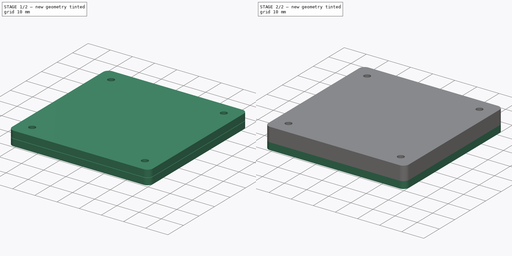
[diagram: build sequence overview — one tinted view per stage of 2, left to right]
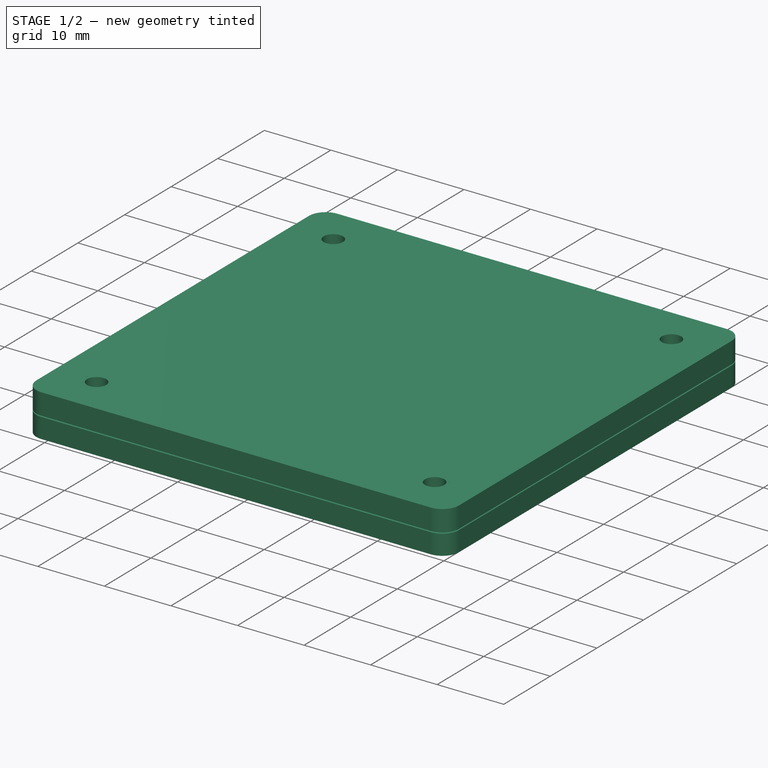
[diagram: stage 1 of 2 — iso view after this stage's code; geometry added in this stage tinted green]
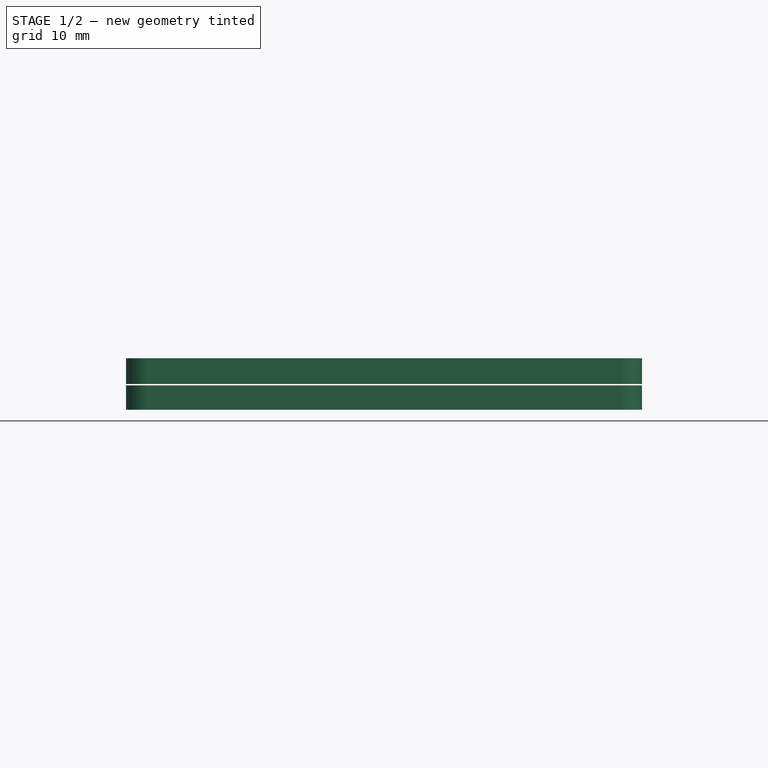
[diagram: stage 1 of 2 — front view after this stage's code; geometry added in this stage tinted green]
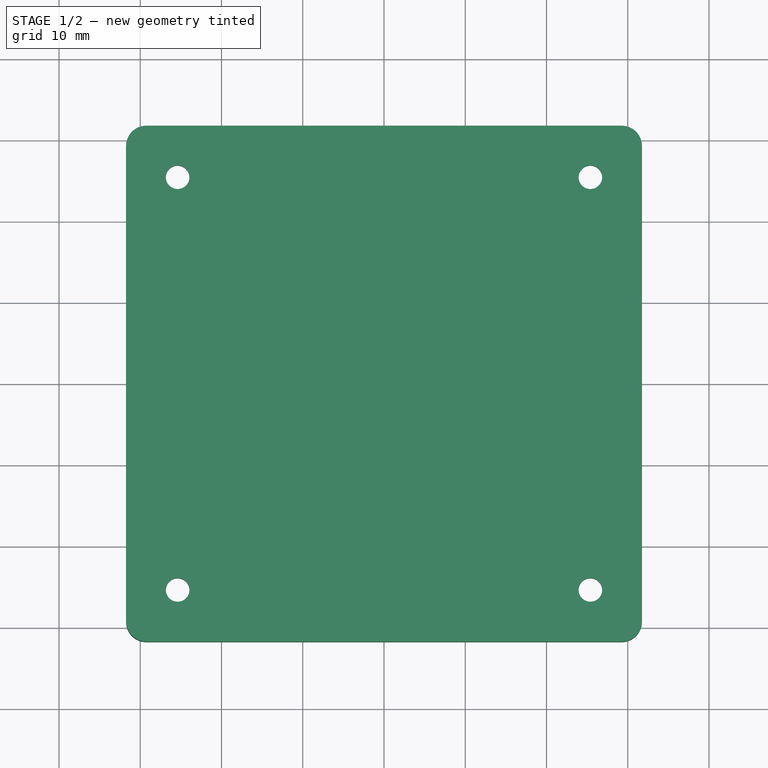
[diagram: stage 1 of 2 — top view after this stage's code; geometry added in this stage tinted green]
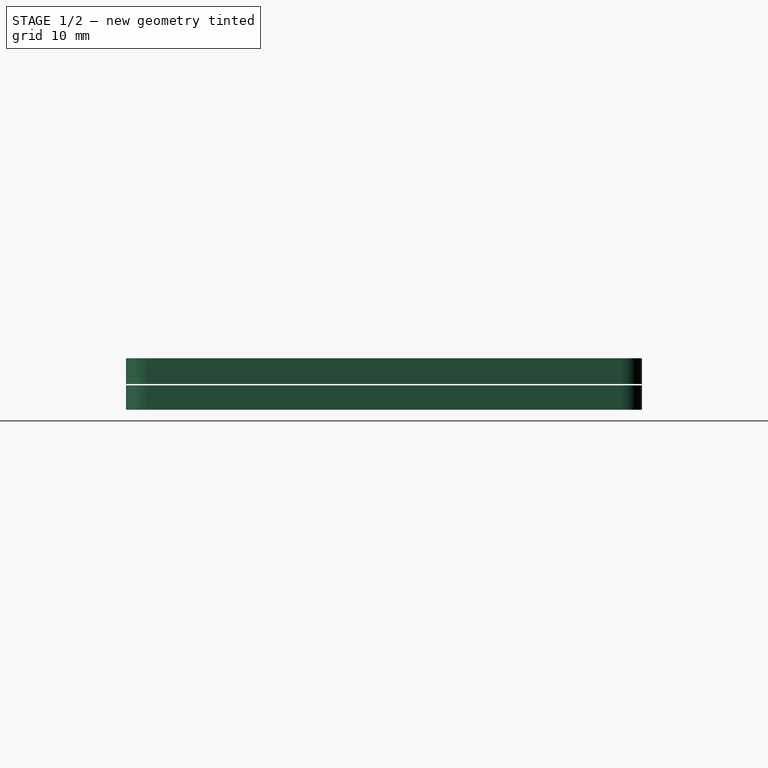
[diagram: stage 1 of 2 — right view after this stage's code; geometry added in this stage tinted green]
FCSTD DOCUMENT  (FreeCAD 1.1R44874 (Git))
Label: Magnetic-Arena
License: Creative Commons Attribution 4.0
objects: Sketcher::SketchObject×4, PartDesign::Pad×4, PartDesign::Body×4, App::Point×4
note: 24 computed .brp shape members not serialized (recipe doc carries the construction recipe); baked Part::Feature solids carry a one-line shape summary decoded from their .brp

FEATURE [PartDesign::Body] Body001  label="Arenaplate"
  AllowCompound = false
  Group = -> [Sketch001,Pad001]
  Origin = -> Origin001
  Tip = -> Pad001
FEATURE [Sketcher::SketchObject] Sketch002  label="lid_sketch"
  ArcFitTolerance = 1e-06
  AttachmentOffset = pos=(0,0,3.175) rot=(0,0,1;0rad)
  AttachmentSupport = -> [XY_Plane002]
  ExternalTypes = [0]
  FullyConstrained = true
  MakeInternals = false
  MapMode = 5
  Placement = pos=(0,0,3.175) rot=(0,0,1;0rad)
  _ExternalGeoVersion = 0
  sketch-geometry (157):
    g0: LineSegment StartX=-31.75 StartY=29.25 StartZ=0 EndX=-31.75 EndY=-29.25 EndZ=0
    g1: LineSegment StartX=-29.25 StartY=-31.75 StartZ=0 EndX=29.25 EndY=-31.75 EndZ=0
    g2: LineSegment StartX=31.75 StartY=-29.25 StartZ=0 EndX=31.75 EndY=29.25 EndZ=0
    g3: LineSegment StartX=29.25 StartY=31.75 StartZ=0 EndX=-29.25 EndY=31.75 EndZ=0
    g4: ArcOfCircle CenterX=-29.25 CenterY=29.25 CenterZ=0 NormalX=0 NormalY=0 NormalZ=1 AngleXU=0 Radius=2.5 StartAngle=1.5708 EndAngle=3.14159
    g5: ArcOfCircle CenterX=-29.25 CenterY=-29.25 CenterZ=0 NormalX=0 NormalY=0 NormalZ=1 AngleXU=0 Radius=2.5 StartAngle=3.14159 EndAngle=4.71239
    g6: ArcOfCircle CenterX=29.25 CenterY=-29.25 CenterZ=0 NormalX=0 NormalY=0 NormalZ=1 AngleXU=0 Radius=2.5 StartAngle=4.71239 EndAngle=6.28319
    g7: ArcOfCircle CenterX=29.25 CenterY=29.25 CenterZ=0 NormalX=0 NormalY=0 NormalZ=1 AngleXU=0 Radius=2.5 StartAngle=5e-16 EndAngle=1.5708
    g8: GeomPoint [constr] X=-31.75 Y=31.75 Z=0
    g9: GeomPoint [constr] X=31.75 Y=-31.75 Z=0
    g10: LineSegment [constr] StartX=-29.25 StartY=29.25 StartZ=0 EndX=29.25 EndY=-29.25 EndZ=0
    g11: LineSegment [constr] StartX=29.25 StartY=29.25 StartZ=0 EndX=-29.25 EndY=-29.25 EndZ=0
    g12: ArcOfCircle CenterX=-25.4 CenterY=25.4 CenterZ=0 NormalX=0 NormalY=0 NormalZ=1 AngleXU=0 Radius=1.45 StartAngle=1.5708 EndAngle=2.35482
    g13: ArcOfCircle CenterX=25.4 CenterY=25.4 CenterZ=0 NormalX=0 NormalY=0 NormalZ=1 AngleXU=0 Radius=1.45 StartAngle=1.5708 EndAngle=2.35482
    g14: ArcOfCircle CenterX=25.4 CenterY=-25.4 CenterZ=0 NormalX=0 NormalY=0 NormalZ=1 AngleXU=0 Radius=1.45 StartAngle=1.5708 EndAngle=2.35482
    g15: ArcOfCircle CenterX=-25.4 CenterY=-25.4 CenterZ=0 NormalX=0 NormalY=0 NormalZ=1 AngleXU=0 Radius=1.45 StartAngle=1.5708 EndAngle=2.35482
    g16: LineSegment [constr] StartX=-25.4 StartY=26.85 StartZ=0 EndX=-25.4 EndY=23.95 EndZ=0
    g17: LineSegment [constr] StartX=-26.85 StartY=25.4 StartZ=0 EndX=-23.95 EndY=25.4 EndZ=0
    g18: LineSegment [constr] StartX=-26.4253 StartY=26.4253 StartZ=0 EndX=-24.3747 EndY=24.3747 EndZ=0
    g19: LineSegment [constr] StartX=-26.4253 StartY=24.3747 StartZ=0 EndX=-24.3747 EndY=26.4253 EndZ=0
    g20: LineSegment StartX=-25.4 StartY=26.85 StartZ=0 EndX=-24.101 EndY=27.6 EndZ=0
    g21: LineSegment StartX=-24.101 StartY=27.6 StartZ=0 EndX=-24.1005 EndY=27.5991 EndZ=0
    g22: LineSegment StartX=-24.1005 StartY=27.5991 StartZ=0 EndX=-25.398 EndY=26.85 EndZ=0
    g23: LineSegment StartX=-24.3747 StartY=26.4253 StartZ=0 EndX=-22.9258 EndY=26.0371 EndZ=0
    g24: LineSegment StartX=-22.9258 StartY=26.0371 StartZ=0 EndX=-22.9261 EndY=26.0361 EndZ=0
    g25: LineSegment StartX=-22.9261 StartY=26.0361 StartZ=0 EndX=-24.3733 EndY=26.4239 EndZ=0
    g26: LineSegment StartX=-23.95 StartY=25.4 StartZ=0 EndX=-23.2 EndY=24.101 EndZ=0
    g27: LineSegment StartX=-23.2 StartY=24.101 StartZ=0 EndX=-23.2009 EndY=24.1005 EndZ=0
    g28: LineSegment StartX=-23.2009 StartY=24.1005 StartZ=0 EndX=-23.95 EndY=25.398 EndZ=0
    g29: LineSegment StartX=-24.3747 StartY=24.3747 StartZ=0 EndX=-24.7629 EndY=22.9258 EndZ=0
    g30: LineSegment StartX=-24.7629 StartY=22.9258 StartZ=0 EndX=-24.7639 EndY=22.9261 EndZ=0
    g31: LineSegment StartX=-24.7639 StartY=22.9261 StartZ=0 EndX=-24.3761 EndY=24.3733 EndZ=0
    g32: LineSegment StartX=-25.4 StartY=23.95 StartZ=0 EndX=-26.699 EndY=23.2 EndZ=0
    g33: LineSegment StartX=-26.699 StartY=23.2 StartZ=0 EndX=-26.6995 EndY=23.2009 EndZ=0
    g34: LineSegment StartX=-26.6995 StartY=23.2009 StartZ=0 EndX=-25.402 EndY=23.95 EndZ=0
    g35: LineSegment StartX=-26.4253 StartY=24.3747 StartZ=0 EndX=-27.8742 EndY=24.7629 EndZ=0
    g36: LineSegment StartX=-27.8742 StartY=24.7629 StartZ=0 EndX=-27.8739 EndY=24.7639 EndZ=0
    g37: LineSegment StartX=-27.8739 StartY=24.7639 StartZ=0 EndX=-26.4267 EndY=24.3761 EndZ=0
    g38: LineSegment StartX=-26.85 StartY=25.4 StartZ=0 EndX=-27.6 EndY=26.699 EndZ=0
    g39: LineSegment StartX=-27.6 StartY=26.699 StartZ=0 EndX=-27.5991 EndY=26.6995 EndZ=0
    g40: LineSegment StartX=-27.5991 StartY=26.6995 StartZ=0 EndX=-26.85 EndY=25.402 EndZ=0
    g41: LineSegment StartX=-26.4253 StartY=26.4253 StartZ=0 EndX=-26.0371 EndY=27.8742 EndZ=0
    g42: LineSegment StartX=-26.0371 StartY=27.8742 StartZ=0 EndX=-26.0361 EndY=27.8739 EndZ=0
    g43: LineSegment StartX=-26.0361 StartY=27.8739 StartZ=0 EndX=-26.4239 EndY=26.4267 EndZ=0
    g44: ArcOfCircle CenterX=-25.4 CenterY=25.4 CenterZ=0 NormalX=0 NormalY=0 NormalZ=1 AngleXU=0 Radius=1.45 StartAngle=0.785398 EndAngle=1.56942
    g45: ArcOfCircle CenterX=-25.4 CenterY=25.4 CenterZ=0 NormalX=0 NormalY=0 NormalZ=1 AngleXU=0 Radius=1.45 StartAngle=2e-15 EndAngle=0.78402
    g46: ArcOfCircle CenterX=-25.4 CenterY=25.4 CenterZ=0 NormalX=0 NormalY=0 NormalZ=1 AngleXU=0 Radius=1.45 StartAngle=5.49779 EndAngle=6.28181
    g47: ArcOfCircle CenterX=-25.4 CenterY=25.4 CenterZ=0 NormalX=0 NormalY=0 NormalZ=1 AngleXU=0 Radius=1.45 StartAngle=2.35619 EndAngle=3.14021
    g48: ArcOfCircle CenterX=-25.4 CenterY=25.4 CenterZ=0 NormalX=0 NormalY=0 NormalZ=1 AngleXU=0 Radius=1.45 StartAngle=4.71239 EndAngle=5.49641
    g49: ArcOfCircle CenterX=-25.4 CenterY=25.4 CenterZ=0 NormalX=0 NormalY=0 NormalZ=1 AngleXU=0 Radius=1.45 StartAngle=3.92699 EndAngle=4.71101
    g50: ArcOfCircle CenterX=-25.4 CenterY=25.4 CenterZ=0 NormalX=0 NormalY=0 NormalZ=1 AngleXU=0 Radius=1.45 StartAngle=3.14159 EndAngle=3.92561
    g51: LineSegment [constr] StartX=25.4 StartY=26.85 StartZ=0 EndX=25.4 EndY=23.95 EndZ=0
    g52: LineSegment [constr] StartX=23.95 StartY=25.4 StartZ=0 EndX=26.85 EndY=25.4 EndZ=0
    g53: LineSegment [constr] StartX=24.3747 StartY=26.4253 StartZ=0 EndX=26.4253 EndY=24.3747 EndZ=0
    g54: GeomPoint [constr] X=26.4253 Y=26.4253 Z=0
    g55: GeomPoint [constr] X=24.3747 Y=24.3747 Z=0
    g56: LineSegment StartX=25.4 StartY=26.85 StartZ=0 EndX=26.699 EndY=27.6 EndZ=0
    g57: LineSegment StartX=26.699 StartY=27.6 StartZ=0 EndX=26.6995 EndY=27.5991 EndZ=0
    g58: LineSegment StartX=26.6995 StartY=27.5991 StartZ=0 EndX=25.402 EndY=26.85 EndZ=0
    g59: LineSegment StartX=26.4253 StartY=26.4253 StartZ=0 EndX=27.8742 EndY=26.0371 EndZ=0
    g60: LineSegment StartX=27.8742 StartY=26.0371 StartZ=0 EndX=27.8739 EndY=26.0361 EndZ=0
    g61: LineSegment StartX=27.8739 StartY=26.0361 StartZ=0 EndX=26.4267 EndY=26.4239 EndZ=0
    g62: LineSegment StartX=26.85 StartY=25.4 StartZ=0 EndX=27.6 EndY=24.101 EndZ=0
    g63: LineSegment StartX=27.6 StartY=24.101 StartZ=0 EndX=27.5991 EndY=24.1005 EndZ=0
    g64: LineSegment StartX=27.5991 StartY=24.1005 StartZ=0 EndX=26.85 EndY=25.398 EndZ=0
    g65: LineSegment StartX=26.4253 StartY=24.3747 StartZ=0 EndX=26.0371 EndY=22.9258 EndZ=0
    g66: LineSegment StartX=26.0371 StartY=22.9258 StartZ=0 EndX=26.0361 EndY=22.9261 EndZ=0
    g67: LineSegment StartX=26.0361 StartY=22.9261 StartZ=0 EndX=26.4239 EndY=24.3733 EndZ=0
    g68: LineSegment StartX=25.4 StartY=23.95 StartZ=0 EndX=24.101 EndY=23.2 EndZ=0
    g69: LineSegment StartX=24.101 StartY=23.2 StartZ=0 EndX=24.1005 EndY=23.2009 EndZ=0
    g70: LineSegment StartX=24.1005 StartY=23.2009 StartZ=0 EndX=25.398 EndY=23.95 EndZ=0
    g71: LineSegment StartX=24.3747 StartY=24.3747 StartZ=0 EndX=22.9258 EndY=24.7629 EndZ=0
    g72: LineSegment StartX=22.9258 StartY=24.7629 StartZ=0 EndX=22.9261 EndY=24.7639 EndZ=0
    g73: LineSegment StartX=22.9261 StartY=24.7639 StartZ=0 EndX=24.3733 EndY=24.3761 EndZ=0
    g74: LineSegment StartX=23.95 StartY=25.4 StartZ=0 EndX=23.2 EndY=26.699 EndZ=0
    g75: LineSegment StartX=23.2 StartY=26.699 StartZ=0 EndX=23.2009 EndY=26.6995 EndZ=0
    g76: LineSegment StartX=23.2009 StartY=26.6995 StartZ=0 EndX=23.95 EndY=25.402 EndZ=0
    g77: LineSegment StartX=24.3747 StartY=26.4253 StartZ=0 EndX=24.7629 EndY=27.8742 EndZ=0
    g78: LineSegment StartX=24.7629 StartY=27.8742 StartZ=0 EndX=24.7639 EndY=27.8739 EndZ=0
    g79: LineSegment StartX=24.7639 StartY=27.8739 StartZ=0 EndX=24.3761 EndY=26.4267 EndZ=0
    g80: ArcOfCircle CenterX=25.4 CenterY=25.4 CenterZ=0 NormalX=0 NormalY=0 NormalZ=1 AngleXU=0 Radius=1.45 StartAngle=0.785398 EndAngle=1.56942
    g81: ArcOfCircle CenterX=25.4 CenterY=25.4 CenterZ=0 NormalX=0 NormalY=0 NormalZ=1 AngleXU=0 Radius=1.45 StartAngle=1.22e-14 EndAngle=0.78402
    g82: ArcOfCircle CenterX=25.4 CenterY=25.4 CenterZ=0 NormalX=0 NormalY=0 NormalZ=1 AngleXU=0 Radius=1.45 StartAngle=5.49779 EndAngle=6.28181
    g83: ArcOfCircle CenterX=25.4 CenterY=25.4 CenterZ=0 NormalX=0 NormalY=0 NormalZ=1 AngleXU=0 Radius=1.45 StartAngle=2.35619 EndAngle=3.14021
    g84: ArcOfCircle CenterX=25.4 CenterY=25.4 CenterZ=0 NormalX=0 NormalY=0 NormalZ=1 AngleXU=0 Radius=1.45 StartAngle=4.71239 EndAngle=5.49641
    g85: ArcOfCircle CenterX=25.4 CenterY=25.4 CenterZ=0 NormalX=0 NormalY=0 NormalZ=1 AngleXU=0 Radius=1.45 StartAngle=3.92699 EndAngle=4.71101
    g86: ArcOfCircle CenterX=25.4 CenterY=25.4 CenterZ=0 NormalX=0 NormalY=0 NormalZ=1 AngleXU=0 Radius=1.45 StartAngle=3.14159 EndAngle=3.92561
    g87: LineSegment [constr] StartX=-25.4 StartY=-23.95 StartZ=0 EndX=-25.4 EndY=-26.85 EndZ=0
    g88: LineSegment [constr] StartX=-23.95 StartY=-25.4 StartZ=0 EndX=-26.85 EndY=-25.4 EndZ=0
    g89: LineSegment [constr] StartX=-26.4253 StartY=-24.3747 StartZ=0 EndX=-24.3747 EndY=-26.4253 EndZ=0
    g90: LineSegment [constr] StartX=-26.4253 StartY=-26.4253 StartZ=0 EndX=-24.3747 EndY=-24.3747 EndZ=0
    g91: LineSegment StartX=-25.4 StartY=-23.95 StartZ=0 EndX=-24.101 EndY=-23.2 EndZ=0
    g92: LineSegment StartX=-24.101 StartY=-23.2 StartZ=0 EndX=-24.1005 EndY=-23.2009 EndZ=0
    g93: LineSegment StartX=-24.1005 StartY=-23.2009 StartZ=0 EndX=-25.398 EndY=-23.95 EndZ=0
    g94: LineSegment StartX=-24.3747 StartY=-24.3747 StartZ=0 EndX=-22.9258 EndY=-24.7629 EndZ=0
    g95: LineSegment StartX=-22.9258 StartY=-24.7629 StartZ=0 EndX=-22.9261 EndY=-24.7639 EndZ=0
    g96: LineSegment StartX=-22.9261 StartY=-24.7639 StartZ=0 EndX=-24.3733 EndY=-24.3761 EndZ=0
    g97: LineSegment StartX=-23.95 StartY=-25.4 StartZ=0 EndX=-23.2 EndY=-26.699 EndZ=0
    g98: LineSegment StartX=-23.2 StartY=-26.699 StartZ=0 EndX=-23.2009 EndY=-26.6995 EndZ=0
    g99: LineSegment StartX=-23.2009 StartY=-26.6995 StartZ=0 EndX=-23.95 EndY=-25.402 EndZ=0
    g100: LineSegment StartX=-24.3747 StartY=-26.4253 StartZ=0 EndX=-24.7629 EndY=-27.8742 EndZ=0
    g101: LineSegment StartX=-24.7629 StartY=-27.8742 StartZ=0 EndX=-24.7639 EndY=-27.8739 EndZ=0
    g102: LineSegment StartX=-24.7639 StartY=-27.8739 StartZ=0 EndX=-24.3761 EndY=-26.4267 EndZ=0
    g103: LineSegment StartX=-25.4 StartY=-26.85 StartZ=0 EndX=-26.699 EndY=-27.6 EndZ=0
    g104: LineSegment StartX=-26.699 StartY=-27.6 StartZ=0 EndX=-26.6995 EndY=-27.5991 EndZ=0
    g105: LineSegment StartX=-26.6995 StartY=-27.5991 StartZ=0 EndX=-25.402 EndY=-26.85 EndZ=0
    g106: LineSegment StartX=-26.4253 StartY=-26.4253 StartZ=0 EndX=-27.8742 EndY=-26.0371 EndZ=0
    g107: LineSegment StartX=-27.8742 StartY=-26.0371 StartZ=0 EndX=-27.8739 EndY=-26.0361 EndZ=0
    g108: LineSegment StartX=-27.8739 StartY=-26.0361 StartZ=0 EndX=-26.4267 EndY=-26.4239 EndZ=0
    g109: LineSegment StartX=-26.85 StartY=-25.4 StartZ=0 EndX=-27.6 EndY=-24.101 EndZ=0
    g110: LineSegment StartX=-27.6 StartY=-24.101 StartZ=0 EndX=-27.5991 EndY=-24.1005 EndZ=0
    g111: LineSegment StartX=-27.5991 StartY=-24.1005 StartZ=0 EndX=-26.85 EndY=-25.398 EndZ=0
    g112: LineSegment StartX=-26.4253 StartY=-24.3747 StartZ=0 EndX=-26.0371 EndY=-22.9258 EndZ=0
    g113: LineSegment StartX=-26.0371 StartY=-22.9258 StartZ=0 EndX=-26.0361 EndY=-22.9261 EndZ=0
    g114: LineSegment StartX=-26.0361 StartY=-22.9261 StartZ=0 EndX=-26.4239 EndY=-24.3733 EndZ=0
    g115: ArcOfCircle CenterX=-25.4 CenterY=-25.4 CenterZ=0 NormalX=0 NormalY=0 NormalZ=1 AngleXU=0 Radius=1.45 StartAngle=0.785398 EndAngle=1.56942
    g116: ArcOfCircle CenterX=-25.4 CenterY=-25.4 CenterZ=0 NormalX=0 NormalY=0 NormalZ=1 AngleXU=0 Radius=1.45 StartAngle=-3.55e-14 EndAngle=0.78402
    g117: ArcOfCircle CenterX=-25.4 CenterY=-25.4 CenterZ=0 NormalX=0 NormalY=0 NormalZ=1 AngleXU=0 Radius=1.45 StartAngle=5.49779 EndAngle=6.28181
    g118: ArcOfCircle CenterX=-25.4 CenterY=-25.4 CenterZ=0 NormalX=0 NormalY=0 NormalZ=1 AngleXU=0 Radius=1.45 StartAngle=4.71239 EndAngle=5.49641
    g119: ArcOfCircle CenterX=-25.4 CenterY=-25.4 CenterZ=0 NormalX=0 NormalY=0 NormalZ=1 AngleXU=0 Radius=1.45 StartAngle=3.92699 EndAngle=4.71101
    g120: ArcOfCircle CenterX=-25.4 CenterY=-25.4 CenterZ=0 NormalX=0 NormalY=0 NormalZ=1 AngleXU=0 Radius=1.45 StartAngle=3.14159 EndAngle=3.92561
    g121: ArcOfCircle CenterX=-25.4 CenterY=-25.4 CenterZ=0 NormalX=0 NormalY=0 NormalZ=1 AngleXU=0 Radius=1.45 StartAngle=2.35619 EndAngle=3.14021
    g122: LineSegment [constr] StartX=25.4 StartY=-23.95 StartZ=0 EndX=25.4 EndY=-26.85 EndZ=0
    g123: LineSegment [constr] StartX=23.95 StartY=-25.4 StartZ=0 EndX=26.85 EndY=-25.4 EndZ=0
    g124: LineSegment [constr] StartX=26.4253 StartY=-24.3747 StartZ=0 EndX=24.3747 EndY=-26.4253 EndZ=0
    g125: LineSegment [constr] StartX=26.4253 StartY=-26.4253 StartZ=0 EndX=24.3747 EndY=-24.3747 EndZ=0
    g126: LineSegment StartX=25.4 StartY=-23.95 StartZ=0 EndX=26.699 EndY=-23.2 EndZ=0
    g127: LineSegment StartX=26.699 StartY=-23.2 StartZ=0 EndX=26.6995 EndY=-23.2009 EndZ=0
    g128: LineSegment StartX=26.6995 StartY=-23.2009 StartZ=0 EndX=25.402 EndY=-23.95 EndZ=0
    g129: LineSegment StartX=26.4253 StartY=-24.3747 StartZ=0 EndX=27.8742 EndY=-24.7629 EndZ=0
    g130: LineSegment StartX=27.8742 StartY=-24.7629 StartZ=0 EndX=27.8739 EndY=-24.7639 EndZ=0
    g131: LineSegment StartX=27.8739 StartY=-24.7639 StartZ=0 EndX=26.4267 EndY=-24.3761 EndZ=0
    g132: LineSegment StartX=26.85 StartY=-25.4 StartZ=0 EndX=27.6 EndY=-26.699 EndZ=0
    g133: LineSegment StartX=27.6 StartY=-26.699 StartZ=0 EndX=27.5991 EndY=-26.6995 EndZ=0
    g134: LineSegment StartX=27.5991 StartY=-26.6995 StartZ=0 EndX=26.85 EndY=-25.402 EndZ=0
    g135: LineSegment StartX=26.4253 StartY=-26.4253 StartZ=0 EndX=26.0371 EndY=-27.8742 EndZ=0
    g136: LineSegment StartX=26.0371 StartY=-27.8742 StartZ=0 EndX=26.0361 EndY=-27.8739 EndZ=0
    g137: LineSegment StartX=26.0361 StartY=-27.8739 StartZ=0 EndX=26.4239 EndY=-26.4267 EndZ=0
    g138: LineSegment StartX=25.4 StartY=-26.85 StartZ=0 EndX=24.101 EndY=-27.6 EndZ=0
    g139: LineSegment StartX=24.101 StartY=-27.6 StartZ=0 EndX=24.1005 EndY=-27.5991 EndZ=0
    g140: LineSegment StartX=24.1005 StartY=-27.5991 StartZ=0 EndX=25.398 EndY=-26.85 EndZ=0
    g141: LineSegment StartX=24.3747 StartY=-26.4253 StartZ=0 EndX=22.9258 EndY=-26.0371 EndZ=0
    g142: LineSegment StartX=22.9258 StartY=-26.0371 StartZ=0 EndX=22.9261 EndY=-26.0361 EndZ=0
    g143: LineSegment StartX=22.9261 StartY=-26.0361 StartZ=0 EndX=24.3733 EndY=-26.4239 EndZ=0
    g144: LineSegment StartX=23.95 StartY=-25.4 StartZ=0 EndX=23.2 EndY=-24.101 EndZ=0
    g145: LineSegment StartX=23.2 StartY=-24.101 StartZ=0 EndX=23.2009 EndY=-24.1005 EndZ=0
    g146: LineSegment StartX=23.2009 StartY=-24.1005 StartZ=0 EndX=23.95 EndY=-25.398 EndZ=0
    g147: LineSegment StartX=24.3747 StartY=-24.3747 StartZ=0 EndX=24.7629 EndY=-22.9258 EndZ=0
    g148: LineSegment StartX=24.7629 StartY=-22.9258 StartZ=0 EndX=24.7639 EndY=-22.9261 EndZ=0
    g149: LineSegment StartX=24.7639 StartY=-22.9261 StartZ=0 EndX=24.3761 EndY=-24.3733 EndZ=0
    g150: ArcOfCircle CenterX=25.4 CenterY=-25.4 CenterZ=0 NormalX=0 NormalY=0 NormalZ=1 AngleXU=0 Radius=1.45 StartAngle=0.785398 EndAngle=1.56942
    g151: ArcOfCircle CenterX=25.4 CenterY=-25.4 CenterZ=0 NormalX=0 NormalY=0 NormalZ=1 AngleXU=0 Radius=1.45 StartAngle=-5.77e-14 EndAngle=0.78402
    g152: ArcOfCircle CenterX=25.4 CenterY=-25.4 CenterZ=0 NormalX=0 NormalY=0 NormalZ=1 AngleXU=0 Radius=1.45 StartAngle=5.49779 EndAngle=6.28181
    g153: ArcOfCircle CenterX=25.4 CenterY=-25.4 CenterZ=0 NormalX=0 NormalY=0 NormalZ=1 AngleXU=0 Radius=1.45 StartAngle=4.71239 EndAngle=5.49641
    g154: ArcOfCircle CenterX=25.4 CenterY=-25.4 CenterZ=0 NormalX=0 NormalY=0 NormalZ=1 AngleXU=0 Radius=1.45 StartAngle=3.92699 EndAngle=4.71101
    g155: ArcOfCircle CenterX=25.4 CenterY=-25.4 CenterZ=0 NormalX=0 NormalY=0 NormalZ=1 AngleXU=0 Radius=1.45 StartAngle=3.14159 EndAngle=3.92561
    g156: ArcOfCircle CenterX=25.4 CenterY=-25.4 CenterZ=0 NormalX=0 NormalY=0 NormalZ=1 AngleXU=0 Radius=1.45 StartAngle=2.35619 EndAngle=3.14021
  constraints (474):
    c: Tangent(g0,g4) = -1.5708
    c: Tangent(g0,g5) = -1.5708
    c: Tangent(g1,g5) = -1.5708
    c: Tangent(g1,g6) = -1.5708
    c: Tangent(g2,g6) = -1.5708
    c: Tangent(g2,g7) = -1.5708
    c: Tangent(g3,g7) = -1.5708
    c: Tangent(g3,g4) = -1.5708
    c: Vertical(g0)
    c: Vertical(g2)
    c: Horizontal(g1)
    c: Horizontal(g3)
    c: Equal(g5,g6)
    c: PointOnObject(g8,g0)
    c: PointOnObject(g8,g3)
    c: PointOnObject(g9,g1)
    c: PointOnObject(g9,g2)
    c: Symmetric(g0,g2,g-2)
    c: Symmetric(g3,g1,g-1)
    c: DistanceX(g0,g2) = 63.5
    c: DistanceY(g1,g3) = 63.5
    c: Diameter(g4) = 5
    c: Coincident(g10,g4)
    c: Coincident(g10,g6)
    c: Coincident(g11,g7)
    c: Coincident(g11,g5)
    c: PointOnObject(g12,g10)
    c: PointOnObject(g13,g11)
    c: PointOnObject(g14,g10)
    c: PointOnObject(g15,g11)
    c: Equal(g12,g13)
    c: Equal(g13,g14)
    c: Equal(g14,g15)
    c: Vertical(g12,g15)
    c: Horizontal(g12,g13)
    c: Vertical(g13,g14)
    c: DistanceY(g15,g12) = 50.8
    c: Diameter(g12) = 2.9
    c: PointOnObject(g16,g48)
    c: Vertical(g16)
    c: PointOnObject(g17,g50)
    c: PointOnObject(g17,g45)
    c: Horizontal(g17)
    c: PointOnObject(g18,g47)
    c: PointOnObject(g18,g46)
    c: PointOnObject(g19,g49)
    c: PointOnObject(g19,g44)
    c: PointOnObject(g12,g17)
    c: PointOnObject(g12,g18)
    c: PointOnObject(g12,g19)
    c: PointOnObject(g12,g16)
    c: Angle(g19,g16) = 0.785398
    c: Angle(g18,g17) = 0.785398
    c: Coincident(g16,g20)
    c: Coincident(g20,g21)
    c: Coincident(g21,g22)
    c: Coincident(g19,g23)
    c: Coincident(g23,g24)
    c: Coincident(g24,g25)
    c: Coincident(g17,g26)
    c: Coincident(g26,g27)
    c: Coincident(g27,g28)
    c: Coincident(g18,g29)
    c: Coincident(g29,g30)
    c: Coincident(g30,g31)
    c: Coincident(g16,g32)
    c: Coincident(g32,g33)
    c: Coincident(g33,g34)
    c: Coincident(g19,g35)
    c: Coincident(g35,g36)
    c: Coincident(g36,g37)
    c: Coincident(g17,g38)
    c: Coincident(g38,g39)
    c: Coincident(g39,g40)
    c: Coincident(g18,g41)
    c: Coincident(g41,g42)
    c: Coincident(g42,g43)
    c: Equal(g20,g23)
    c: Equal(g23,g26)
    c: Equal(g26,g29)
    c: Equal(g29,g32)
    c: Equal(g32,g35)
    c: Equal(g35,g38)
    c: Equal(g38,g41)
    c: Equal(g21,g42)
    c: Equal(g42,g24)
    c: Equal(g24,g27)
    c: Equal(g27,g39)
    c: Equal(g39,g36)
    c: Equal(g36,g33)
    c: Equal(g33,g30)
    c: Perpendicular(g20,g21)
    c: Perpendicular(g23,g24)
    c: Perpendicular(g26,g27)
    c: Perpendicular(g29,g30)
    c: Perpendicular(g32,g33)
    c: Perpendicular(g35,g36)
    c: Perpendicular(g38,g39)
    c: Perpendicular(g41,g42)
    c: Parallel(g20,g22)
    c: Parallel(g23,g25)
    c: Parallel(g26,g28)
    c: Parallel(g29,g31)
    c: Parallel(g32,g34)
    c: Parallel(g35,g37)
    c: Parallel(g38,g40)
    c: Parallel(g41,g43)
    c: Coincident(g44,g22)
    c: Coincident(g12,g16)
    c: Equal(g12,g44)
    c: Coincident(g45,g25)
    c: PointOnObject(g44,g19)
    c: Coincident(g12,g44)
    c: Equal(g12,g45)
    c: Coincident(g46,g28)
    c: PointOnObject(g45,g17)
    c: Coincident(g12,g45)
    c: Equal(g12,g46)
    c: Coincident(g48,g31)
    c: PointOnObject(g46,g29)
    c: Coincident(g12,g46)
    c: Equal(g12,g47)
    c: Coincident(g12,g43)
    c: PointOnObject(g47,g10)
    c: Coincident(g12,g47)
    c: Equal(g47,g48)
    c: Coincident(g49,g34)
    c: PointOnObject(g48,g16)
    c: Coincident(g47,g48)
    c: Equal(g47,g49)
    c: Coincident(g50,g37)
    c: PointOnObject(g49,g19)
    c: Coincident(g47,g49)
    c: Equal(g47,g50)
    c: Coincident(g47,g40)
    c: PointOnObject(g50,g17)
    c: Coincident(g47,g50)
    c: Angle(g16,g20) = 2.0944
    c: Angle(g19,g23) = 2.0944
    c: Angle(g17,g26) = 2.0944
    c: Angle(g29,g10) = 1.0472
    c: Angle(g16,g32) = 2.0944
    c: Angle(g19,g35) = 2.0944
    c: Angle(g17,g38) = 2.0944
    c: Angle(g10,g41) = 2.0944
    c: Distance(g20) = 1.5
    c: Distance(g21) = 0.001
    c: PointOnObject(g51,g84)
    c: Vertical(g51)
    c: PointOnObject(g52,g86)
    c: PointOnObject(g52,g81)
    c: Horizontal(g52)
    c: PointOnObject(g53,g83)
    c: PointOnObject(g53,g82)
    c: PointOnObject(g13,g53)
    c: PointOnObject(g13,g52)
    c: PointOnObject(g13,g51)
    c: Angle(g51,g53) = 0.785398
    c: PointOnObject(g54,g11)
    c: PointOnObject(g55,g11)
    c: PointOnObject(g55,g85)
    c: PointOnObject(g54,g80)
    c: Coincident(g51,g56)
    c: Coincident(g56,g57)
    c: Coincident(g57,g58)
    c: Coincident(g59,g54)
    c: Coincident(g59,g60)
    c: Coincident(g60,g61)
    c: Coincident(g52,g62)
    c: Coincident(g62,g63)
    c: Coincident(g63,g64)
    c: Coincident(g53,g65)
    c: Coincident(g65,g66)
    c: Coincident(g66,g67)
    c: Coincident(g51,g68)
    c: Coincident(g68,g69)
    c: Coincident(g69,g70)
    c: Coincident(g71,g55)
    c: Coincident(g71,g72)
    c: Coincident(g72,g73)
    c: Coincident(g52,g74)
    c: Coincident(g74,g75)
    c: Coincident(g75,g76)
    c: Coincident(g53,g77)
    c: Coincident(g77,g78)
    c: Coincident(g78,g79)
    c: Equal(g56,g59)
    c: Equal(g59,g62)
    c: Equal(g62,g65)
    c: Equal(g65,g68)
    c: Equal(g68,g71)
    c: Equal(g71,g74)
    c: Equal(g74,g77)
    c: Equal(g78,g57)
    c: Equal(g57,g60)
    c: Equal(g60,g63)
    c: Equal(g63,g66)
    c: Equal(g66,g69)
    c: Equal(g69,g72)
    c: Equal(g72,g75)
    c: Perpendicular(g57,g56)
    c: Perpendicular(g60,g59)
    c: Perpendicular(g63,g62)
    c: Perpendicular(g66,g65)
    c: Perpendicular(g69,g68)
    c: Perpendicular(g72,g71)
    c: Perpendicular(g75,g74)
    c: Perpendicular(g78,g77)
    c: Parallel(g61,g59)
    c: Parallel(g58,g56)
    c: Parallel(g62,g64)
    c: Parallel(g65,g67)
    c: Parallel(g68,g70)
    c: Parallel(g71,g73)
    c: Parallel(g74,g76)
    c: Parallel(g77,g79)
    c: Angle(g51,g56) = 2.0944
    c: Angle(g11,g59) = 2.0944
    c: Angle(g52,g62) = 2.0944
    c: Angle(g53,g65) = 2.0944
    c: Angle(g51,g68) = 2.0944
    c: Angle(g71,g11) = 1.0472
    c: Angle(g52,g74) = 2.0944
    c: Angle(g53,g77) = 2.0944
    c: Distance(g56) = 1.5
    c: Coincident(g80,g58)
    c: Coincident(g13,g51)
    c: Equal(g13,g80)
    c: Coincident(g81,g61)
    c: PointOnObject(g80,g11)
    c: Coincident(g13,g80)
    c: Equal(g13,g81)
    c: Coincident(g82,g64)
    c: PointOnObject(g81,g52)
    c: Coincident(g13,g81)
    c: Equal(g13,g82)
    c: Coincident(g84,g67)
    c: PointOnObject(g82,g53)
    c: Coincident(g13,g82)
    c: Equal(g13,g83)
    c: Coincident(g13,g79)
    c: PointOnObject(g83,g53)
    c: Coincident(g13,g83)
    c: Equal(g83,g84)
    c: Coincident(g85,g70)
    c: PointOnObject(g84,g51)
    c: Coincident(g83,g84)
    c: Equal(g83,g85)
    c: Coincident(g86,g73)
    c: PointOnObject(g85,g11)
    c: Coincident(g83,g85)
    c: Equal(g83,g86)
    c: Coincident(g83,g76)
    c: PointOnObject(g86,g52)
    c: Coincident(g83,g86)
    c: Distance(g57) = 0.001
    c: PointOnObject(g87,g118)
    c: Vertical(g87)
    c: PointOnObject(g88,g116)
    c: PointOnObject(g88,g120)
    c: Horizontal(g88)
    c: PointOnObject(g89,g121)
    c: PointOnObject(g89,g117)
    c: PointOnObject(g90,g119)
    c: PointOnObject(g90,g115)
    c: PointOnObject(g15,g87)
    c: PointOnObject(g15,g90)
    c: PointOnObject(g15,g89)
    c: PointOnObject(g15,g88)
    c: Angle(g88,g90) = 0.785398
    c: Angle(g87,g89) = 0.785398
    c: Coincident(g87,g91)
    c: Coincident(g91,g92)
    c: Coincident(g92,g93)
    c: Coincident(g90,g94)
    c: Coincident(g94,g95)
    c: Coincident(g95,g96)
    c: Coincident(g88,g97)
    c: Coincident(g97,g98)
    c: Coincident(g98,g99)
    c: Coincident(g89,g100)
    c: Coincident(g100,g101)
    c: Coincident(g101,g102)
    c: Coincident(g87,g103)
    c: Coincident(g103,g104)
    c: Coincident(g104,g105)
    c: Coincident(g90,g106)
    c: Coincident(g106,g107)
    c: Coincident(g107,g108)
    c: Coincident(g88,g109)
    c: Coincident(g109,g110)
    c: Coincident(g110,g111)
    c: Coincident(g89,g112)
    c: Coincident(g112,g113)
    c: Coincident(g113,g114)
    c: Angle(g87,g91) = 2.0944
    c: Angle(g94,g11) = 1.0472
    c: Angle(g88,g97) = 2.0944
    c: Angle(g89,g100) = 2.0944
    c: Angle(g87,g103) = 2.0944
    c: Angle(g11,g106) = 2.0944
    c: Angle(g88,g109) = 2.0944
    c: Angle(g89,g112) = 2.0944
    c: Parallel(g91,g93)
    c: Parallel(g94,g96)
    c: Parallel(g97,g99)
    c: Parallel(g100,g102)
    c: Parallel(g103,g105)
    c: Parallel(g106,g108)
    c: Parallel(g109,g111)
    c: Parallel(g112,g114)
    c: Perpendicular(g92,g91)
    c: Perpendicular(g95,g94)
    c: Perpendicular(g98,g97)
    c: Perpendicular(g101,g100)
    c: Perpendicular(g104,g103)
    c: Perpendicular(g107,g106)
    c: Perpendicular(g110,g109)
    c: Perpendicular(g113,g112)
    c: Coincident(g115,g93)
    c: Coincident(g15,g87)
    c: Equal(g15,g115)
    c: Coincident(g116,g96)
    c: PointOnObject(g115,g11)
    c: Coincident(g15,g115)
    c: Equal(g15,g116)
    c: Coincident(g117,g99)
    c: PointOnObject(g116,g97)
    c: Coincident(g15,g116)
    c: Equal(g15,g117)
    c: Coincident(g118,g102)
    c: PointOnObject(g117,g89)
    c: Coincident(g15,g117)
    c: Equal(g15,g118)
    c: Coincident(g119,g105)
    c: PointOnObject(g118,g103)
    c: Coincident(g15,g118)
    c: Equal(g15,g119)
    c: Coincident(g120,g108)
    c: PointOnObject(g119,g90)
    c: Coincident(g15,g119)
    c: Equal(g15,g120)
    c: Coincident(g121,g111)
    c: PointOnObject(g120,g88)
    c: Coincident(g15,g120)
    c: Equal(g15,g121)
    c: Coincident(g15,g114)
    c: PointOnObject(g121,g89)
    c: Coincident(g15,g121)
    c: Equal(g91,g94)
    c: Equal(g94,g97)
    c: Equal(g97,g100)
    c: Equal(g100,g103)
    c: Equal(g103,g106)
    c: Equal(g106,g109)
    c: Equal(g109,g112)
    c: Equal(g113,g92)
    c: Equal(g92,g95)
    c: Equal(g95,g98)
    c: Equal(g98,g101)
    c: Equal(g101,g104)
    c: Equal(g104,g107)
    c: Equal(g107,g110)
    c: Distance(g91) = 1.5
    c: Distance(g92) = 0.001
    c: PointOnObject(g122,g153)
    c: Vertical(g122)
    c: PointOnObject(g123,g155)
    c: PointOnObject(g123,g151)
    c: Horizontal(g123)
    c: PointOnObject(g124,g150)
    c: PointOnObject(g124,g154)
    c: PointOnObject(g125,g152)
    c: PointOnObject(g125,g156)
    c: PointOnObject(g14,g125)
    c: PointOnObject(g14,g123)
    c: PointOnObject(g14,g124)
    c: PointOnObject(g14,g122)
    c: Angle(g122,g125) = 0.785398
    c: Angle(g122,g124) = -0.785398
    c: Coincident(g122,g126)
    c: Coincident(g126,g127)
    c: Coincident(g127,g128)
    c: Coincident(g124,g129)
    c: Coincident(g129,g130)
    c: Coincident(g130,g131)
    c: Coincident(g123,g132)
    c: Coincident(g132,g133)
    c: Coincident(g133,g134)
    c: Coincident(g125,g135)
    c: Coincident(g135,g136)
    c: Coincident(g136,g137)
    c: Coincident(g122,g138)
    c: Coincident(g138,g139)
    c: Coincident(g139,g140)
    c: Coincident(g124,g141)
    c: Coincident(g141,g142)
    c: Coincident(g142,g143)
    c: Coincident(g123,g144)
    c: Coincident(g144,g145)
    c: Coincident(g145,g146)
    c: Coincident(g125,g147)
    c: Coincident(g147,g148)
    c: Coincident(g148,g149)
    c: Coincident(g150,g128)
    c: Coincident(g14,g122)
    c: Equal(g14,g150)
    c: Coincident(g151,g131)
    c: PointOnObject(g150,g124)
    c: Coincident(g14,g150)
    c: Equal(g14,g151)
    c: Coincident(g152,g134)
    c: PointOnObject(g151,g132)
    c: Coincident(g14,g151)
    c: Equal(g14,g152)
    c: Coincident(g153,g137)
    c: PointOnObject(g152,g125)
    c: Coincident(g14,g152)
    c: Equal(g14,g153)
    c: Coincident(g154,g140)
    c: PointOnObject(g153,g138)
    c: Coincident(g14,g153)
    c: Equal(g14,g154)
    c: Coincident(g155,g143)
    c: PointOnObject(g154,g124)
    c: Coincident(g14,g154)
    c: Equal(g14,g155)
    c: Coincident(g156,g146)
    c: PointOnObject(g155,g144)
    c: Coincident(g14,g155)
    c: Equal(g14,g156)
    c: Coincident(g14,g149)
    c: PointOnObject(g156,g10)
    c: Coincident(g14,g156)
    c: Angle(g122,g126) = 2.0944
    c: Angle(g124,g129) = 2.0944
    c: Angle(g123,g132) = 2.0944
    c: Angle(g10,g135) = 2.0944
    c: Angle(g122,g138) = 2.0944
    c: Angle(g124,g141) = 2.0944
    c: Angle(g123,g144) = 2.0944
    c: Angle(g147,g10) = 1.0472
    c: Equal(g147,g126)
    c: Equal(g126,g129)
    c: Equal(g129,g132)
    c: Equal(g132,g135)
    c: Equal(g135,g138)
    c: Equal(g138,g141)
    c: Equal(g141,g144)
    c: Equal(g127,g130)
    c: Equal(g130,g133)
    c: Equal(g133,g136)
    c: Equal(g136,g139)
    c: Equal(g139,g142)
    c: Equal(g142,g145)
    c: Equal(g145,g148)
    c: Perpendicular(g127,g126)
    c: Perpendicular(g130,g129)
    c: Perpendicular(g133,g132)
    c: Perpendicular(g136,g135)
    c: Perpendicular(g139,g138)
    c: Perpendicular(g142,g141)
    c: Perpendicular(g145,g144)
    c: Perpendicular(g148,g147)
    c: Parallel(g147,g149)
    c: Parallel(g126,g128)
    c: Parallel(g129,g131)
    c: Parallel(g132,g134)
    c: Parallel(g135,g137)
    c: Parallel(g138,g140)
    c: Parallel(g141,g143)
    c: Parallel(g144,g146)
    c: Distance(g126) = 1.5
    c: Distance(g127) = 0.001
FEATURE [PartDesign::Pad] Pad002  label="lid_sheet"
  Direction = (0,0,1)
  Length = 3.175
  Length2 = 10
  Profile = -> Sketch002
  ReferenceAxis = -> Sketch002 [N_Axis]
  Refine = true
  SideType = 0
  Suppressed = false
  Type = 0
  Type2 = 0
FEATURE [PartDesign::Body] Body002  label="Lid"
  AllowCompound = false
  Group = -> [Sketch002,Pad002]
  Origin = -> Origin002
  Tip = -> Pad002
FEATURE [App::Point] Origin003  label="Origin"
  Role = Origin
FEATURE [App::Point] Origin004  label="Origin"
  Role = Origin
FEATURE [App::Point] Origin005  label="Origin"
  Role = Origin
FEATURE [App::Point] Origin007
  Role = Origin
FEATURE [Sketcher::SketchObject] Sketch003
  ArcFitTolerance = 1e-06
  AttachmentSupport = -> [Origin006]
  ExternalTypes = [0]
  FullyConstrained = true
  MakeInternals = false
  MapMode = 5
  _ExternalGeoVersion = 1
  sketch-geometry (22):
    g0: LineSegment StartX=-31.75 StartY=29.25 StartZ=0 EndX=-31.75 EndY=-29.25 EndZ=0
    g1: LineSegment StartX=-29.25 StartY=-31.75 StartZ=0 EndX=29.25 EndY=-31.75 EndZ=0
    g2: LineSegment StartX=31.75 StartY=-29.25 StartZ=0 EndX=31.75 EndY=29.25 EndZ=0
    g3: LineSegment StartX=29.25 StartY=31.75 StartZ=0 EndX=-29.25 EndY=31.75 EndZ=0
    g4: ArcOfCircle CenterX=-29.25 CenterY=29.25 CenterZ=0 NormalX=0 NormalY=0 NormalZ=1 AngleXU=0 Radius=2.5 StartAngle=1.5708 EndAngle=3.14159
    g5: ArcOfCircle CenterX=-29.25 CenterY=-29.25 CenterZ=0 NormalX=0 NormalY=0 NormalZ=1 AngleXU=0 Radius=2.5 StartAngle=3.14159 EndAngle=4.71239
    g6: ArcOfCircle CenterX=29.25 CenterY=-29.25 CenterZ=0 NormalX=0 NormalY=0 NormalZ=1 AngleXU=0 Radius=2.5 StartAngle=4.71239 EndAngle=6.28319
    g7: ArcOfCircle CenterX=29.25 CenterY=29.25 CenterZ=0 NormalX=0 NormalY=0 NormalZ=1 AngleXU=0 Radius=2.5 StartAngle=0 EndAngle=1.5708
    g8: GeomPoint [constr] X=-31.75 Y=31.75 Z=0
    g9: GeomPoint [constr] X=31.75 Y=-31.75 Z=0
    g10: ArcOfCircle CenterX=-2.1e-14 CenterY=1.3e-14 CenterZ=0 NormalX=0 NormalY=0 NormalZ=1 AngleXU=0 Radius=19.05 StartAngle=3.14159 EndAngle=4.71239
    g11: LineSegment StartX=-2.1e-14 StartY=19.05 StartZ=0 EndX=-2.1e-14 EndY=1.42e-14 EndZ=0
    g12: LineSegment StartX=-2.1e-14 StartY=1.3e-14 StartZ=0 EndX=-19.05 EndY=1.3e-14 EndZ=0
    g13: LineSegment StartX=-2.1e-14 StartY=-19.05 StartZ=0 EndX=-2.1e-14 EndY=1.42e-14 EndZ=0
    g14: LineSegment StartX=-2.1e-14 StartY=1.3e-14 StartZ=0 EndX=19.05 EndY=1.3e-14 EndZ=0
    g15: ArcOfCircle CenterX=-2.1e-14 CenterY=1.3e-14 CenterZ=0 NormalX=0 NormalY=0 NormalZ=1 AngleXU=0 Radius=19.05 StartAngle=0 EndAngle=1.5708
    g16: Circle CenterX=-25.4 CenterY=25.4 CenterZ=0 NormalX=0 NormalY=0 NormalZ=1 AngleXU=0 Radius=3
    g17: Circle CenterX=25.4 CenterY=25.4 CenterZ=0 NormalX=0 NormalY=0 NormalZ=1 AngleXU=0 Radius=3
    g18: Circle CenterX=-25.4 CenterY=-25.4 CenterZ=0 NormalX=0 NormalY=0 NormalZ=1 AngleXU=0 Radius=3
    g19: Circle CenterX=25.4 CenterY=-25.4 CenterZ=0 NormalX=0 NormalY=0 NormalZ=1 AngleXU=0 Radius=3
    g20: LineSegment [constr] StartX=-29.25 StartY=-29.25 StartZ=0 EndX=29.25 EndY=29.25 EndZ=0
    g21: LineSegment [constr] StartX=-29.25 StartY=29.25 StartZ=0 EndX=29.25 EndY=-29.25 EndZ=0
  constraints (54):
    c: Tangent(g0,g4) = -1.5708
    c: Tangent(g0,g5) = -1.5708
    c: Tangent(g1,g5) = -1.5708
    c: Tangent(g1,g6) = -1.5708
    c: Tangent(g2,g6) = -1.5708
    c: Tangent(g2,g7) = -1.5708
    c: Tangent(g3,g7) = -1.5708
    c: Tangent(g3,g4) = -1.5708
    c: Vertical(g0)
    c: Vertical(g2)
    c: Horizontal(g1)
    c: Horizontal(g3)
    c: Equal(g4,g5)
    c: PointOnObject(g8,g0)
    c: PointOnObject(g8,g3)
    c: PointOnObject(g9,g1)
    c: PointOnObject(g9,g2)
    c: Diameter(g7) = 5
    c: Symmetric(g0,g2,g-2)
    c: Symmetric(g3,g1,g-1)
    c: DistanceY(g1,g3) = 63.5
    c: DistanceX(g0,g2) = 63.5
    c: Coincident(g10,g-1)
    c: Coincident(g11,g10)
    c: Vertical(g11)
    c: Coincident(g11,g12)
    c: Horizontal(g12)
    c: Coincident(g11,g15)
    c: Coincident(g12,g10)
    c: Coincident(g13,g10)
    c: Vertical(g13)
    c: Coincident(g13,g14)
    c: Horizontal(g14)
    c: Diameter(g10) = 38.1
    c: Coincident(g13,g10)
    c: Coincident(g14,g15)
    c: Coincident(g10,g15)
    c: Diameter(g15) = 38.1
    c: Equal(g19,g17)
    c: Equal(g17,g16)
    c: Equal(g16,g18)
    c: Coincident(g20,g5)
    c: Coincident(g20,g7)
    c: Coincident(g21,g4)
    c: Coincident(g21,g6)
    c: PointOnObject(g19,g21)
    c: PointOnObject(g17,g20)
    c: PointOnObject(g16,g21)
    c: PointOnObject(g18,g20)
    c: Vertical(g18,g16)
    c: Vertical(g17,g19)
    c: Horizontal(g17,g16)
    c: DistanceY(g18,g16) = 50.8
    c: Diameter(g16) = 6
FEATURE [PartDesign::Pad] Pad003
  Direction = (0,0,1)
  Length = 3
  Length2 = 10
  Profile = -> Sketch003
  ReferenceAxis = -> Sketch003 [N_Axis]
  Refine = true
  SideType = 0
  Suppressed = false
  Type = 0
  Type2 = 0
FEATURE [PartDesign::Body] Body003  label="Mask"
  AllowCompound = false
  Group = -> [Sketch003,Pad003]
  Origin = -> Origin006
  Tip = -> Pad003
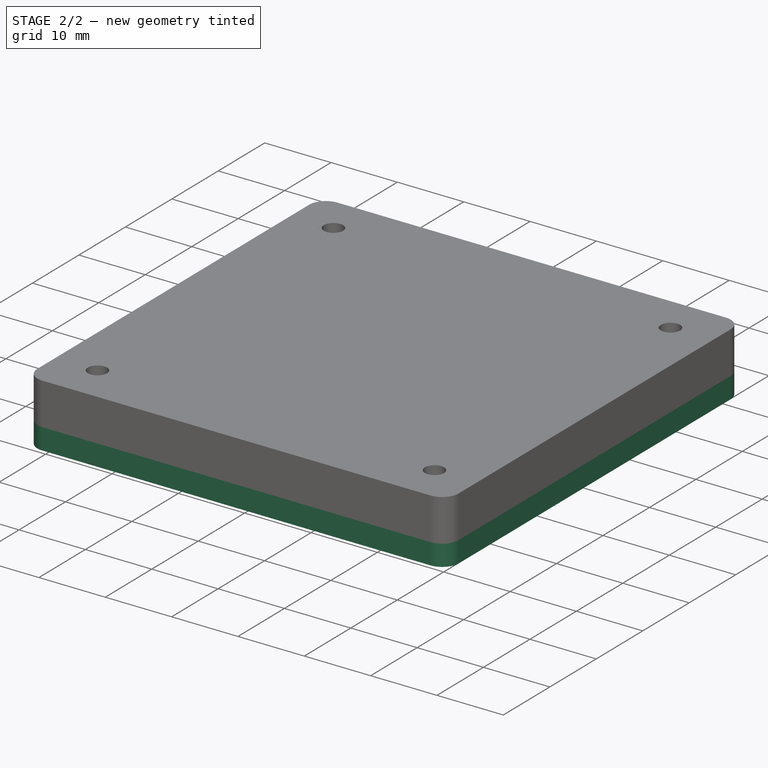
[diagram: stage 2 of 2 — iso view after this stage's code; geometry added in this stage tinted green]
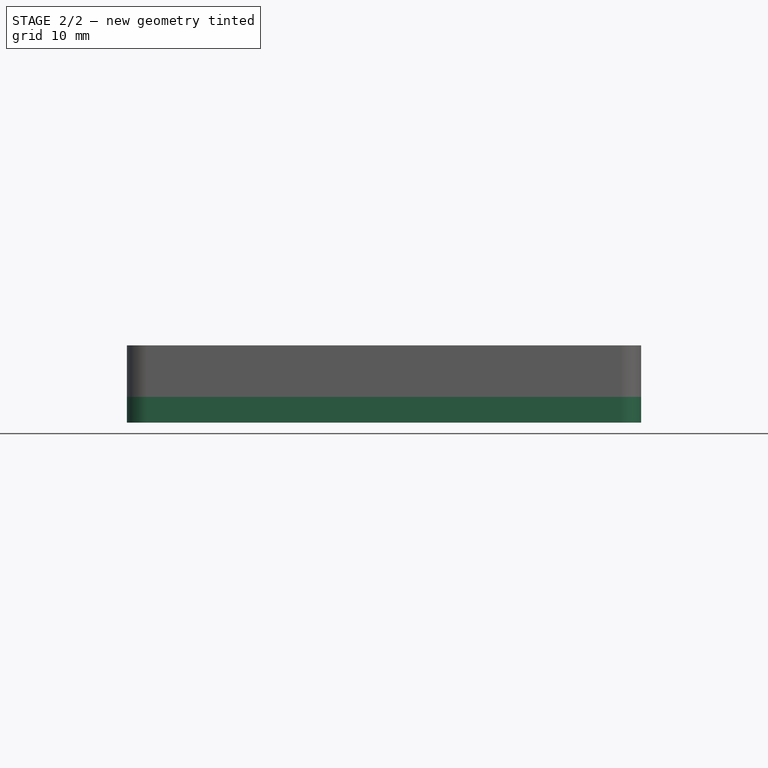
[diagram: stage 2 of 2 — front view after this stage's code; geometry added in this stage tinted green]
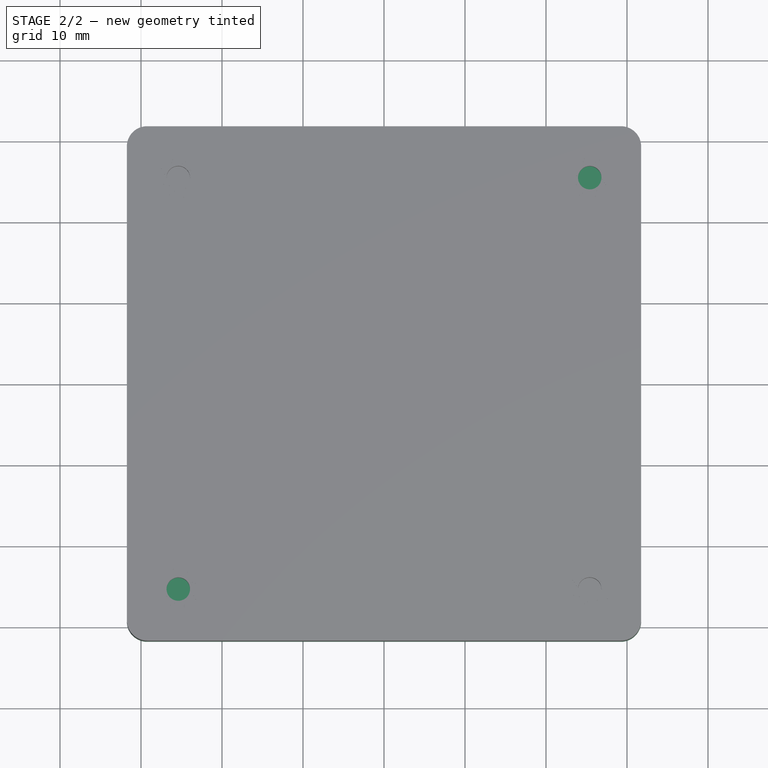
[diagram: stage 2 of 2 — top view after this stage's code; geometry added in this stage tinted green]
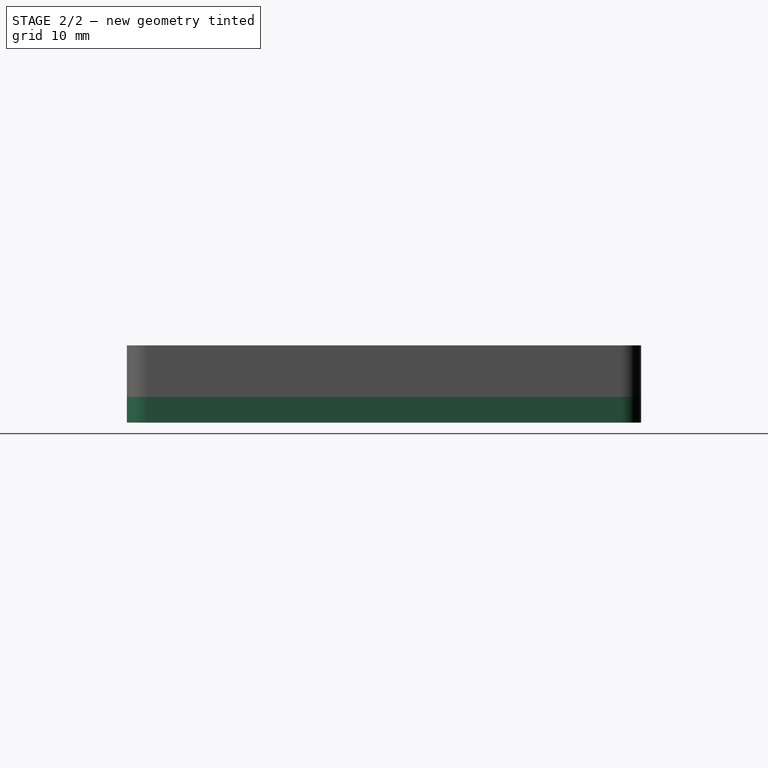
[diagram: stage 2 of 2 — right view after this stage's code; geometry added in this stage tinted green]
FEATURE [Sketcher::SketchObject] Sketch  label="Baseplate_sketch"
  ArcFitTolerance = 1e-06
  AttachmentSupport = -> [XY_Plane]
  ExternalTypes = [0]
  FullyConstrained = true
  MakeInternals = false
  MapMode = 5
  _ExternalGeoVersion = 0
  sketch-geometry (10):
    g0: LineSegment StartX=-31.75 StartY=29.25 StartZ=0 EndX=-31.75 EndY=-29.25 EndZ=0
    g1: LineSegment StartX=-29.25 StartY=-31.75 StartZ=0 EndX=29.25 EndY=-31.75 EndZ=0
    g2: LineSegment StartX=31.75 StartY=-29.25 StartZ=0 EndX=31.75 EndY=29.25 EndZ=0
    g3: LineSegment StartX=29.25 StartY=31.75 StartZ=0 EndX=-29.25 EndY=31.75 EndZ=0
    g4: ArcOfCircle CenterX=-29.25 CenterY=29.25 CenterZ=0 NormalX=0 NormalY=0 NormalZ=1 AngleXU=0 Radius=2.5 StartAngle=1.5708 EndAngle=3.14159
    g5: ArcOfCircle CenterX=-29.25 CenterY=-29.25 CenterZ=0 NormalX=0 NormalY=0 NormalZ=1 AngleXU=0 Radius=2.5 StartAngle=3.14159 EndAngle=4.71239
    g6: ArcOfCircle CenterX=29.25 CenterY=-29.25 CenterZ=0 NormalX=0 NormalY=0 NormalZ=1 AngleXU=0 Radius=2.5 StartAngle=4.71239 EndAngle=6.28319
    g7: ArcOfCircle CenterX=29.25 CenterY=29.25 CenterZ=0 NormalX=0 NormalY=0 NormalZ=1 AngleXU=0 Radius=2.5 StartAngle=-1.847e-13 EndAngle=1.5708
    g8: GeomPoint [constr] X=-31.75 Y=31.75 Z=0
    g9: GeomPoint [constr] X=31.75 Y=-31.75 Z=0
  constraints (22):
    c: Tangent(g0,g4) = -1.5708
    c: Tangent(g0,g5) = -1.5708
    c: Tangent(g1,g5) = -1.5708
    c: Tangent(g1,g6) = -1.5708
    c: Tangent(g2,g6) = -1.5708
    c: Tangent(g2,g7) = -1.5708
    c: Tangent(g3,g7) = -1.5708
    c: Tangent(g3,g4) = -1.5708
    c: Vertical(g2)
    c: Horizontal(g1)
    c: Equal(g4,g5)
    c: Equal(g5,g6)
    c: Equal(g6,g7)
    c: PointOnObject(g8,g0)
    c: PointOnObject(g8,g3)
    c: PointOnObject(g9,g1)
    c: PointOnObject(g9,g2)
    c: DistanceX(g0,g2) = 63.5
    c: DistanceY(g1,g3) = 63.5
    c: Diameter(g4) = 5
    c: Symmetric(g3,g3,g-2)
    c: Symmetric(g0,g0,g-1)
FEATURE [PartDesign::Pad] Pad  label="Baseplate_pad"
  Direction = (0,0,1)
  Length = 3.175
  Length2 = 10
  Profile = -> Sketch
  ReferenceAxis = -> Sketch [N_Axis]
  Refine = true
  Reversed = true
  SideType = 0
  Suppressed = false
  Type = 0
  Type2 = 0
FEATURE [PartDesign::Body] Body  label="Baseplate"
  AllowCompound = false
  Group = -> [Sketch,Pad]
  Origin = -> Origin
  Tip = -> Pad
FEATURE [Sketcher::SketchObject] Sketch001  label="Arenaplate_sketch"
  ArcFitTolerance = 1e-06
  AttachmentSupport = -> [XY_Plane001]
  ExternalTypes = [0]
  FullyConstrained = true
  MakeInternals = false
  MapMode = 5
  _ExternalGeoVersion = 0
  sketch-geometry (158):
    g0: LineSegment StartX=-31.75 StartY=29.25 StartZ=0 EndX=-31.75 EndY=-29.25 EndZ=0
    g1: LineSegment StartX=-29.25 StartY=-31.75 StartZ=0 EndX=29.25 EndY=-31.75 EndZ=0
    g2: LineSegment StartX=31.75 StartY=-29.25 StartZ=0 EndX=31.75 EndY=29.25 EndZ=0
    g3: LineSegment StartX=29.25 StartY=31.75 StartZ=0 EndX=-29.25 EndY=31.75 EndZ=0
    g4: ArcOfCircle CenterX=-29.25 CenterY=29.25 CenterZ=0 NormalX=0 NormalY=0 NormalZ=1 AngleXU=0 Radius=2.5 StartAngle=1.5708 EndAngle=3.14159
    g5: ArcOfCircle CenterX=-29.25 CenterY=-29.25 CenterZ=0 NormalX=0 NormalY=0 NormalZ=1 AngleXU=0 Radius=2.5 StartAngle=3.14159 EndAngle=4.71239
    g6: ArcOfCircle CenterX=29.25 CenterY=-29.25 CenterZ=0 NormalX=0 NormalY=0 NormalZ=1 AngleXU=0 Radius=2.5 StartAngle=4.71239 EndAngle=6.28319
    g7: ArcOfCircle CenterX=29.25 CenterY=29.25 CenterZ=0 NormalX=0 NormalY=0 NormalZ=1 AngleXU=0 Radius=2.5 StartAngle=5e-16 EndAngle=1.5708
    g8: GeomPoint [constr] X=-31.75 Y=31.75 Z=0
    g9: GeomPoint [constr] X=31.75 Y=-31.75 Z=0
    g10: LineSegment [constr] StartX=-29.25 StartY=-29.25 StartZ=0 EndX=29.25 EndY=29.25 EndZ=0
    g11: LineSegment [constr] StartX=-29.25 StartY=29.25 StartZ=0 EndX=29.25 EndY=-29.25 EndZ=0
    g12: GeomPoint [constr] X=0 Y=0 Z=0
    g13: ArcOfCircle CenterX=-25.4 CenterY=25.4 CenterZ=0 NormalX=0 NormalY=0 NormalZ=1 AngleXU=0 Radius=1.5875 StartAngle=1.5708 EndAngle=2.35494
    g14: ArcOfCircle CenterX=25.4 CenterY=25.4 CenterZ=0 NormalX=0 NormalY=0 NormalZ=1 AngleXU=0 Radius=1.5875 StartAngle=1.5708 EndAngle=2.35494
    g15: ArcOfCircle CenterX=25.4 CenterY=-25.4 CenterZ=0 NormalX=0 NormalY=0 NormalZ=1 AngleXU=0 Radius=1.5875 StartAngle=1.5708 EndAngle=2.35494
    g16: ArcOfCircle CenterX=-25.4 CenterY=-25.4 CenterZ=0 NormalX=0 NormalY=0 NormalZ=1 AngleXU=0 Radius=1.5875 StartAngle=1.5708 EndAngle=2.35494
    g17: Circle CenterX=0 CenterY=0 CenterZ=0 NormalX=0 NormalY=0 NormalZ=1 AngleXU=0 Radius=19.05
    g18: LineSegment [constr] StartX=-25.4 StartY=26.9875 StartZ=0 EndX=-25.4 EndY=23.8125 EndZ=0
    g19: LineSegment [constr] StartX=-26.9875 StartY=25.4 StartZ=0 EndX=-23.8125 EndY=25.4 EndZ=0
    g20: LineSegment [constr] StartX=-26.5225 StartY=26.5225 StartZ=0 EndX=-24.2775 EndY=24.2775 EndZ=0
    g21: LineSegment [constr] StartX=-24.2775 StartY=26.5225 StartZ=0 EndX=-26.5225 EndY=24.2775 EndZ=0
    g22: LineSegment StartX=-25.4 StartY=26.9875 StartZ=0 EndX=-24.101 EndY=27.7375 EndZ=0
    g23: LineSegment StartX=-24.101 StartY=27.7375 StartZ=0 EndX=-24.1005 EndY=27.7366 EndZ=0
    g24: LineSegment StartX=-24.1005 StartY=27.7366 StartZ=0 EndX=-25.398 EndY=26.9875 EndZ=0
    g25: LineSegment StartX=-24.2775 StartY=26.5225 StartZ=0 EndX=-22.8286 EndY=26.1343 EndZ=0
    g26: LineSegment StartX=-22.8286 StartY=26.1343 StartZ=0 EndX=-22.8288 EndY=26.1333 EndZ=0
    g27: LineSegment StartX=-22.8288 StartY=26.1333 StartZ=0 EndX=-24.2761 EndY=26.5211 EndZ=0
    g28: LineSegment StartX=-23.8125 StartY=25.4 StartZ=0 EndX=-23.0625 EndY=24.101 EndZ=0
    g29: LineSegment StartX=-23.0625 StartY=24.101 StartZ=0 EndX=-23.0634 EndY=24.1005 EndZ=0
    g30: LineSegment StartX=-23.0634 StartY=24.1005 StartZ=0 EndX=-23.8125 EndY=25.398 EndZ=0
    g31: LineSegment StartX=-24.2775 StartY=24.2775 StartZ=0 EndX=-24.6657 EndY=22.8286 EndZ=0
    g32: LineSegment StartX=-24.6657 StartY=22.8286 StartZ=0 EndX=-24.6667 EndY=22.8288 EndZ=0
    g33: LineSegment StartX=-24.6667 StartY=22.8288 StartZ=0 EndX=-24.2789 EndY=24.2761 EndZ=0
    g34: LineSegment StartX=-25.4 StartY=23.8125 StartZ=0 EndX=-26.699 EndY=23.0625 EndZ=0
    g35: LineSegment StartX=-26.699 StartY=23.0625 StartZ=0 EndX=-26.6995 EndY=23.0634 EndZ=0
    g36: LineSegment StartX=-26.6995 StartY=23.0634 StartZ=0 EndX=-25.402 EndY=23.8125 EndZ=0
    g37: LineSegment StartX=-26.5225 StartY=24.2775 StartZ=0 EndX=-27.9714 EndY=24.6657 EndZ=0
    g38: LineSegment StartX=-27.9714 StartY=24.6657 StartZ=0 EndX=-27.9712 EndY=24.6667 EndZ=0
    g39: LineSegment StartX=-27.9712 StartY=24.6667 StartZ=0 EndX=-26.5239 EndY=24.2789 EndZ=0
    g40: LineSegment StartX=-26.9875 StartY=25.4 StartZ=0 EndX=-27.7375 EndY=26.699 EndZ=0
    g41: LineSegment StartX=-27.7375 StartY=26.699 StartZ=0 EndX=-27.7366 EndY=26.6995 EndZ=0
    g42: LineSegment StartX=-27.7366 StartY=26.6995 StartZ=0 EndX=-26.9875 EndY=25.402 EndZ=0
    g43: LineSegment StartX=-26.5225 StartY=26.5225 StartZ=0 EndX=-26.1343 EndY=27.9714 EndZ=0
    g44: LineSegment StartX=-26.1343 StartY=27.9714 StartZ=0 EndX=-26.1333 EndY=27.9712 EndZ=0
    g45: LineSegment StartX=-26.1333 StartY=27.9712 StartZ=0 EndX=-26.5211 EndY=26.5239 EndZ=0
    g46: ArcOfCircle CenterX=-25.4 CenterY=25.4 CenterZ=0 NormalX=0 NormalY=0 NormalZ=1 AngleXU=0 Radius=1.5875 StartAngle=0.785398 EndAngle=1.56954
    g47: ArcOfCircle CenterX=-25.4 CenterY=25.4 CenterZ=0 NormalX=0 NormalY=0 NormalZ=1 AngleXU=0 Radius=1.5875 StartAngle=1.336e-13 EndAngle=0.78414
    g48: ArcOfCircle CenterX=-25.4 CenterY=25.4 CenterZ=0 NormalX=0 NormalY=0 NormalZ=1 AngleXU=0 Radius=1.5875 StartAngle=5.49779 EndAngle=6.28193
    g49: ArcOfCircle CenterX=-25.4 CenterY=25.4 CenterZ=0 NormalX=0 NormalY=0 NormalZ=1 AngleXU=0 Radius=1.5875 StartAngle=2.35619 EndAngle=3.14033
    g50: ArcOfCircle CenterX=-25.4 CenterY=25.4 CenterZ=0 NormalX=0 NormalY=0 NormalZ=1 AngleXU=0 Radius=1.5875 StartAngle=4.71239 EndAngle=5.49653
    g51: ArcOfCircle CenterX=-25.4 CenterY=25.4 CenterZ=0 NormalX=0 NormalY=0 NormalZ=1 AngleXU=0 Radius=1.5875 StartAngle=3.92699 EndAngle=4.71113
    g52: ArcOfCircle CenterX=-25.4 CenterY=25.4 CenterZ=0 NormalX=0 NormalY=0 NormalZ=1 AngleXU=0 Radius=1.5875 StartAngle=3.14159 EndAngle=3.92573
    g53: LineSegment [constr] StartX=25.4 StartY=26.9875 StartZ=0 EndX=25.4 EndY=23.8125 EndZ=0
    g54: LineSegment [constr] StartX=23.8125 StartY=25.4 StartZ=0 EndX=26.9875 EndY=25.4 EndZ=0
    g55: LineSegment [constr] StartX=24.2775 StartY=26.5225 StartZ=0 EndX=26.5225 EndY=24.2775 EndZ=0
    g56: LineSegment [constr] StartX=24.2775 StartY=24.2775 StartZ=0 EndX=26.5225 EndY=26.5225 EndZ=0
    g57: LineSegment StartX=25.4 StartY=26.9875 StartZ=0 EndX=26.699 EndY=27.7375 EndZ=0
    g58: LineSegment StartX=26.699 StartY=27.7375 StartZ=0 EndX=26.6995 EndY=27.7366 EndZ=0
    g59: LineSegment StartX=26.6995 StartY=27.7366 StartZ=0 EndX=25.402 EndY=26.9875 EndZ=0
    g60: LineSegment StartX=26.5225 StartY=26.5225 StartZ=0 EndX=27.9714 EndY=26.1343 EndZ=0
    g61: LineSegment StartX=27.9714 StartY=26.1343 StartZ=0 EndX=27.9712 EndY=26.1333 EndZ=0
    g62: LineSegment StartX=27.9712 StartY=26.1333 StartZ=0 EndX=26.5239 EndY=26.5211 EndZ=0
    g63: LineSegment StartX=26.9875 StartY=25.4 StartZ=0 EndX=27.7375 EndY=24.101 EndZ=0
    g64: LineSegment StartX=27.7375 StartY=24.101 StartZ=0 EndX=27.7366 EndY=24.1005 EndZ=0
    g65: LineSegment StartX=27.7366 StartY=24.1005 StartZ=0 EndX=26.9875 EndY=25.398 EndZ=0
    g66: LineSegment StartX=26.5225 StartY=24.2775 StartZ=0 EndX=26.1343 EndY=22.8286 EndZ=0
    g67: LineSegment StartX=26.1343 StartY=22.8286 StartZ=0 EndX=26.1333 EndY=22.8288 EndZ=0
    g68: LineSegment StartX=26.1333 StartY=22.8288 StartZ=0 EndX=26.5211 EndY=24.2761 EndZ=0
    g69: LineSegment StartX=25.4 StartY=23.8125 StartZ=0 EndX=24.101 EndY=23.0625 EndZ=0
    g70: LineSegment StartX=24.101 StartY=23.0625 StartZ=0 EndX=24.1005 EndY=23.0634 EndZ=0
    g71: LineSegment StartX=24.1005 StartY=23.0634 StartZ=0 EndX=25.398 EndY=23.8125 EndZ=0
    g72: LineSegment StartX=24.2775 StartY=24.2775 StartZ=0 EndX=22.8286 EndY=24.6657 EndZ=0
    g73: LineSegment StartX=22.8286 StartY=24.6657 StartZ=0 EndX=22.8288 EndY=24.6667 EndZ=0
    g74: LineSegment StartX=22.8288 StartY=24.6667 StartZ=0 EndX=24.2761 EndY=24.2789 EndZ=0
    g75: LineSegment StartX=23.8125 StartY=25.4 StartZ=0 EndX=23.0625 EndY=26.699 EndZ=0
    g76: LineSegment StartX=23.0625 StartY=26.699 StartZ=0 EndX=23.0634 EndY=26.6995 EndZ=0
    g77: LineSegment StartX=23.0634 StartY=26.6995 StartZ=0 EndX=23.8125 EndY=25.402 EndZ=0
    g78: LineSegment StartX=24.2775 StartY=26.5225 StartZ=0 EndX=24.6657 EndY=27.9714 EndZ=0
    g79: LineSegment StartX=24.6657 StartY=27.9714 StartZ=0 EndX=24.6667 EndY=27.9712 EndZ=0
    g80: LineSegment StartX=24.6667 StartY=27.9712 StartZ=0 EndX=24.2789 EndY=26.5239 EndZ=0
    g81: ArcOfCircle CenterX=25.4 CenterY=25.4 CenterZ=0 NormalX=0 NormalY=0 NormalZ=1 AngleXU=0 Radius=1.5875 StartAngle=0.785398 EndAngle=1.56954
    g82: ArcOfCircle CenterX=25.4 CenterY=25.4 CenterZ=0 NormalX=0 NormalY=0 NormalZ=1 AngleXU=0 Radius=1.5875 StartAngle=9.9e-15 EndAngle=0.78414
    g83: ArcOfCircle CenterX=25.4 CenterY=25.4 CenterZ=0 NormalX=0 NormalY=0 NormalZ=1 AngleXU=0 Radius=1.5875 StartAngle=3.14159 EndAngle=3.92573
    g84: ArcOfCircle CenterX=25.4 CenterY=25.4 CenterZ=0 NormalX=0 NormalY=0 NormalZ=1 AngleXU=0 Radius=1.5875 StartAngle=5.49779 EndAngle=6.28193
    g85: ArcOfCircle CenterX=25.4 CenterY=25.4 CenterZ=0 NormalX=0 NormalY=0 NormalZ=1 AngleXU=0 Radius=1.5875 StartAngle=4.71239 EndAngle=5.49653
    g86: ArcOfCircle CenterX=25.4 CenterY=25.4 CenterZ=0 NormalX=0 NormalY=0 NormalZ=1 AngleXU=0 Radius=1.5875 StartAngle=3.92699 EndAngle=4.71113
    g87: ArcOfCircle CenterX=25.4 CenterY=25.4 CenterZ=0 NormalX=0 NormalY=0 NormalZ=1 AngleXU=0 Radius=1.5875 StartAngle=2.35619 EndAngle=3.14033
    g88: LineSegment [constr] StartX=-25.4 StartY=-23.8125 StartZ=0 EndX=-25.4 EndY=-26.9875 EndZ=0
    g89: LineSegment [constr] StartX=-26.9875 StartY=-25.4 StartZ=0 EndX=-23.8125 EndY=-25.4 EndZ=0
    g90: LineSegment [constr] StartX=-26.5225 StartY=-26.5225 StartZ=0 EndX=-24.2775 EndY=-24.2775 EndZ=0
    g91: LineSegment [constr] StartX=-26.5225 StartY=-24.2775 StartZ=0 EndX=-24.2775 EndY=-26.5225 EndZ=0
    g92: LineSegment StartX=-25.4 StartY=-23.8125 StartZ=0 EndX=-24.101 EndY=-23.0625 EndZ=0
    g93: LineSegment StartX=-24.101 StartY=-23.0625 StartZ=0 EndX=-24.1005 EndY=-23.0634 EndZ=0
    g94: LineSegment StartX=-24.1005 StartY=-23.0634 StartZ=0 EndX=-25.398 EndY=-23.8125 EndZ=0
    g95: LineSegment StartX=-24.2775 StartY=-24.2775 StartZ=0 EndX=-22.8286 EndY=-24.6657 EndZ=0
    g96: LineSegment StartX=-22.8286 StartY=-24.6657 StartZ=0 EndX=-22.8288 EndY=-24.6667 EndZ=0
    g97: LineSegment StartX=-22.8288 StartY=-24.6667 StartZ=0 EndX=-24.2761 EndY=-24.2789 EndZ=0
    g98: LineSegment StartX=-23.8125 StartY=-25.4 StartZ=0 EndX=-23.0625 EndY=-26.699 EndZ=0
    g99: LineSegment StartX=-23.0625 StartY=-26.699 StartZ=0 EndX=-23.0634 EndY=-26.6995 EndZ=0
    g100: LineSegment StartX=-23.0634 StartY=-26.6995 StartZ=0 EndX=-23.8125 EndY=-25.402 EndZ=0
    g101: LineSegment StartX=-24.2775 StartY=-26.5225 StartZ=0 EndX=-24.6657 EndY=-27.9714 EndZ=0
    g102: LineSegment StartX=-24.6657 StartY=-27.9714 StartZ=0 EndX=-24.6667 EndY=-27.9712 EndZ=0
    g103: LineSegment StartX=-24.6667 StartY=-27.9712 StartZ=0 EndX=-24.2789 EndY=-26.5239 EndZ=0
    g104: LineSegment StartX=-25.4 StartY=-26.9875 StartZ=0 EndX=-26.699 EndY=-27.7375 EndZ=0
    g105: LineSegment StartX=-26.699 StartY=-27.7375 StartZ=0 EndX=-26.6995 EndY=-27.7366 EndZ=0
    g106: LineSegment StartX=-26.6995 StartY=-27.7366 StartZ=0 EndX=-25.402 EndY=-26.9875 EndZ=0
    g107: LineSegment StartX=-26.5225 StartY=-26.5225 StartZ=0 EndX=-27.9714 EndY=-26.1343 EndZ=0
    g108: LineSegment StartX=-27.9714 StartY=-26.1343 StartZ=0 EndX=-27.9712 EndY=-26.1333 EndZ=0
    g109: LineSegment StartX=-27.9712 StartY=-26.1333 StartZ=0 EndX=-26.5239 EndY=-26.5211 EndZ=0
    g110: LineSegment StartX=-26.9875 StartY=-25.4 StartZ=0 EndX=-27.7375 EndY=-24.101 EndZ=0
    g111: LineSegment StartX=-27.7375 StartY=-24.101 StartZ=0 EndX=-27.7366 EndY=-24.1005 EndZ=0
    g112: LineSegment StartX=-27.7366 StartY=-24.1005 StartZ=0 EndX=-26.9875 EndY=-25.398 EndZ=0
    g113: LineSegment StartX=-26.5225 StartY=-24.2775 StartZ=0 EndX=-26.1343 EndY=-22.8286 EndZ=0
    g114: LineSegment StartX=-26.1343 StartY=-22.8286 StartZ=0 EndX=-26.1333 EndY=-22.8288 EndZ=0
    g115: LineSegment StartX=-26.1333 StartY=-22.8288 StartZ=0 EndX=-26.5211 EndY=-24.2761 EndZ=0
    g116: ArcOfCircle CenterX=-25.4 CenterY=-25.4 CenterZ=0 NormalX=0 NormalY=0 NormalZ=1 AngleXU=0 Radius=1.5875 StartAngle=0.785398 EndAngle=1.56954
    g117: ArcOfCircle CenterX=-25.4 CenterY=-25.4 CenterZ=0 NormalX=0 NormalY=0 NormalZ=1 AngleXU=0 Radius=1.5875 StartAngle=0 EndAngle=0.78414
    g118: ArcOfCircle CenterX=-25.4 CenterY=-25.4 CenterZ=0 NormalX=0 NormalY=0 NormalZ=1 AngleXU=0 Radius=1.5875 StartAngle=5.49779 EndAngle=6.28193
    g119: ArcOfCircle CenterX=-25.4 CenterY=-25.4 CenterZ=0 NormalX=0 NormalY=0 NormalZ=1 AngleXU=0 Radius=1.5875 StartAngle=4.71239 EndAngle=5.49653
    g120: ArcOfCircle CenterX=-25.4 CenterY=-25.4 CenterZ=0 NormalX=0 NormalY=0 NormalZ=1 AngleXU=0 Radius=1.5875 StartAngle=3.92699 EndAngle=4.71113
    g121: ArcOfCircle CenterX=-25.4 CenterY=-25.4 CenterZ=0 NormalX=0 NormalY=0 NormalZ=1 AngleXU=0 Radius=1.5875 StartAngle=3.14159 EndAngle=3.92573
    g122: ArcOfCircle CenterX=-25.4 CenterY=-25.4 CenterZ=0 NormalX=0 NormalY=0 NormalZ=1 AngleXU=0 Radius=1.5875 StartAngle=2.35619 EndAngle=3.14033
    g123: LineSegment [constr] StartX=25.4 StartY=-23.8125 StartZ=0 EndX=25.4 EndY=-26.9875 EndZ=0
    g124: LineSegment [constr] StartX=26.9875 StartY=-25.4 StartZ=0 EndX=23.8125 EndY=-25.4 EndZ=0
    g125: LineSegment [constr] StartX=24.2775 StartY=-24.2775 StartZ=0 EndX=26.5225 EndY=-26.5225 EndZ=0
    g126: LineSegment [constr] StartX=24.2775 StartY=-26.5225 StartZ=0 EndX=26.5225 EndY=-24.2775 EndZ=0
    g127: LineSegment StartX=25.4 StartY=-23.8125 StartZ=0 EndX=26.699 EndY=-23.0625 EndZ=0
    g128: LineSegment StartX=26.699 StartY=-23.0625 StartZ=0 EndX=26.6995 EndY=-23.0634 EndZ=0
    g129: LineSegment StartX=26.6995 StartY=-23.0634 StartZ=0 EndX=25.402 EndY=-23.8125 EndZ=0
    g130: LineSegment StartX=26.5225 StartY=-24.2775 StartZ=0 EndX=27.9714 EndY=-24.6657 EndZ=0
    g131: LineSegment StartX=27.9714 StartY=-24.6657 StartZ=0 EndX=27.9712 EndY=-24.6667 EndZ=0
    g132: LineSegment StartX=27.9712 StartY=-24.6667 StartZ=0 EndX=26.5239 EndY=-24.2789 EndZ=0
    g133: LineSegment StartX=26.9875 StartY=-25.4 StartZ=0 EndX=27.7375 EndY=-26.699 EndZ=0
    g134: LineSegment StartX=27.7375 StartY=-26.699 StartZ=0 EndX=27.7366 EndY=-26.6995 EndZ=0
    g135: LineSegment StartX=27.7366 StartY=-26.6995 StartZ=0 EndX=26.9875 EndY=-25.402 EndZ=0
    g136: LineSegment StartX=26.5225 StartY=-26.5225 StartZ=0 EndX=26.1343 EndY=-27.9714 EndZ=0
    g137: LineSegment StartX=26.1343 StartY=-27.9714 StartZ=0 EndX=26.1333 EndY=-27.9712 EndZ=0
    g138: LineSegment StartX=26.1333 StartY=-27.9712 StartZ=0 EndX=26.5211 EndY=-26.5239 EndZ=0
    g139: LineSegment StartX=25.4 StartY=-26.9875 StartZ=0 EndX=24.101 EndY=-27.7375 EndZ=0
    g140: LineSegment StartX=24.101 StartY=-27.7375 StartZ=0 EndX=24.1005 EndY=-27.7366 EndZ=0
    g141: LineSegment StartX=24.1005 StartY=-27.7366 StartZ=0 EndX=25.398 EndY=-26.9875 EndZ=0
    g142: LineSegment StartX=24.2775 StartY=-26.5225 StartZ=0 EndX=22.8286 EndY=-26.1343 EndZ=0
    g143: LineSegment StartX=22.8286 StartY=-26.1343 StartZ=0 EndX=22.8288 EndY=-26.1333 EndZ=0
    g144: LineSegment StartX=22.8288 StartY=-26.1333 StartZ=0 EndX=24.2761 EndY=-26.5211 EndZ=0
    g145: LineSegment StartX=23.8125 StartY=-25.4 StartZ=0 EndX=23.0625 EndY=-24.101 EndZ=0
    g146: LineSegment StartX=23.0625 StartY=-24.101 StartZ=0 EndX=23.0634 EndY=-24.1005 EndZ=0
    g147: LineSegment StartX=23.0634 StartY=-24.1005 StartZ=0 EndX=23.8125 EndY=-25.398 EndZ=0
    g148: LineSegment StartX=24.2775 StartY=-24.2775 StartZ=0 EndX=24.6657 EndY=-22.8286 EndZ=0
    g149: LineSegment StartX=24.6657 StartY=-22.8286 StartZ=0 EndX=24.6667 EndY=-22.8288 EndZ=0
    g150: LineSegment StartX=24.6667 StartY=-22.8288 StartZ=0 EndX=24.2789 EndY=-24.2761 EndZ=0
    g151: ArcOfCircle CenterX=25.4 CenterY=-25.4 CenterZ=0 NormalX=0 NormalY=0 NormalZ=1 AngleXU=0 Radius=1.5875 StartAngle=0.785398 EndAngle=1.56954
    g152: ArcOfCircle CenterX=25.4 CenterY=-25.4 CenterZ=0 NormalX=0 NormalY=0 NormalZ=1 AngleXU=0 Radius=1.5875 StartAngle=4.8e-15 EndAngle=0.78414
    g153: ArcOfCircle CenterX=25.4 CenterY=-25.4 CenterZ=0 NormalX=0 NormalY=0 NormalZ=1 AngleXU=0 Radius=1.5875 StartAngle=5.49779 EndAngle=6.28193
    g154: ArcOfCircle CenterX=25.4 CenterY=-25.4 CenterZ=0 NormalX=0 NormalY=0 NormalZ=1 AngleXU=0 Radius=1.5875 StartAngle=4.71239 EndAngle=5.49653
    g155: ArcOfCircle CenterX=25.4 CenterY=-25.4 CenterZ=0 NormalX=0 NormalY=0 NormalZ=1 AngleXU=0 Radius=1.5875 StartAngle=3.92699 EndAngle=4.71113
    g156: ArcOfCircle CenterX=25.4 CenterY=-25.4 CenterZ=0 NormalX=0 NormalY=0 NormalZ=1 AngleXU=0 Radius=1.5875 StartAngle=3.14159 EndAngle=3.92573
    g157: ArcOfCircle CenterX=25.4 CenterY=-25.4 CenterZ=0 NormalX=0 NormalY=0 NormalZ=1 AngleXU=0 Radius=1.5875 StartAngle=2.35619 EndAngle=3.14033
  constraints (480):
    c: Tangent(g0,g4) = -1.5708
    c: Tangent(g0,g5) = -1.5708
    c: Tangent(g1,g5) = -1.5708
    c: Tangent(g1,g6) = -1.5708
    c: Tangent(g2,g6) = -1.5708
    c: Tangent(g2,g7) = -1.5708
    c: Tangent(g3,g7) = -1.5708
    c: Tangent(g3,g4) = -1.5708
    c: Vertical(g0)
    c: Vertical(g2)
    c: Horizontal(g1)
    c: Horizontal(g3)
    c: Equal(g4,g5)
    c: Equal(g5,g6)
    c: Equal(g6,g7)
    c: PointOnObject(g8,g0)
    c: PointOnObject(g8,g3)
    c: PointOnObject(g9,g1)
    c: PointOnObject(g9,g2)
    c: DistanceX(g0,g2) = 63.5
    c: DistanceY(g1,g3) = 63.5
    c: Diameter(g4) = 5
    c: Coincident(g10,g5)
    c: Coincident(g10,g7)
    c: Coincident(g11,g4)
    c: Coincident(g11,g6)
    c: PointOnObject(g12,g10)
    c: PointOnObject(g12,g11)
    c: PointOnObject(g12,g-1)
    c: PointOnObject(g12,g-2)
    c: PointOnObject(g13,g11)
    c: PointOnObject(g14,g10)
    c: PointOnObject(g15,g11)
    c: PointOnObject(g16,g10)
    c: Diameter(g13) = 3.175
    c: Equal(g13,g14)
    c: Equal(g14,g15)
    c: Equal(g15,g16)
    c: DistanceX(g16,g15) = 50.8
    c: DistanceY(g16,g13) = 50.8
    c: Vertical(g16,g13)
    c: Horizontal(g14,g13)
    c: Coincident(g17,g12)
    c: Diameter(g17) = 38.1
    c: PointOnObject(g18,g50)
    c: Vertical(g18)
    c: PointOnObject(g19,g52)
    c: PointOnObject(g19,g47)
    c: Horizontal(g19)
    c: PointOnObject(g20,g49)
    c: PointOnObject(g20,g48)
    c: PointOnObject(g21,g46)
    c: PointOnObject(g21,g51)
    c: PointOnObject(g13,g18)
    c: PointOnObject(g13,g19)
    c: PointOnObject(g13,g21)
    c: PointOnObject(g13,g20)
    c: Angle(g20,g19) = 0.785398
    c: Angle(g21,g18) = 0.785398
    c: Coincident(g18,g22)
    c: Coincident(g22,g23)
    c: Coincident(g23,g24)
    c: Coincident(g21,g25)
    c: Coincident(g25,g26)
    c: Coincident(g26,g27)
    c: Coincident(g19,g28)
    c: Coincident(g28,g29)
    c: Coincident(g29,g30)
    c: Coincident(g20,g31)
    c: Coincident(g31,g32)
    c: Coincident(g32,g33)
    c: Coincident(g18,g34)
    c: Coincident(g34,g35)
    c: Coincident(g35,g36)
    c: Coincident(g21,g37)
    c: Coincident(g37,g38)
    c: Coincident(g38,g39)
    c: Coincident(g19,g40)
    c: Coincident(g40,g41)
    c: Coincident(g41,g42)
    c: Coincident(g20,g43)
    c: Coincident(g43,g44)
    c: Coincident(g44,g45)
    c: Coincident(g46,g24)
    c: Coincident(g13,g22)
    c: Equal(g13,g46)
    c: Coincident(g47,g27)
    c: PointOnObject(g46,g25)
    c: Coincident(g13,g46)
    c: Equal(g13,g47)
    c: Coincident(g48,g30)
    c: PointOnObject(g47,g28)
    c: Coincident(g13,g47)
    c: Equal(g13,g48)
    c: Coincident(g50,g33)
    c: PointOnObject(g48,g20)
    c: Coincident(g13,g48)
    c: Equal(g13,g49)
    c: Coincident(g13,g45)
    c: PointOnObject(g49,g11)
    c: Coincident(g13,g49)
    c: Equal(g49,g50)
    c: Coincident(g51,g36)
    c: PointOnObject(g50,g18)
    c: Coincident(g49,g50)
    c: Equal(g49,g51)
    c: Coincident(g52,g39)
    c: PointOnObject(g51,g37)
    c: Coincident(g49,g51)
    c: Equal(g49,g52)
    c: Coincident(g49,g42)
    c: PointOnObject(g52,g19)
    c: Coincident(g49,g52)
    c: Equal(g22,g25)
    c: Equal(g25,g28)
    c: Equal(g28,g31)
    c: Equal(g31,g34)
    c: Equal(g34,g37)
    c: Equal(g37,g40)
    c: Equal(g40,g43)
    c: Equal(g23,g26)
    c: Equal(g26,g29)
    c: Equal(g29,g32)
    c: Equal(g32,g35)
    c: Equal(g35,g38)
    c: Equal(g38,g41)
    c: Equal(g41,g44)
    c: Perpendicular(g23,g22)
    c: Perpendicular(g26,g25)
    c: Perpendicular(g29,g28)
    c: Perpendicular(g32,g31)
    c: Perpendicular(g38,g37)
    c: Perpendicular(g41,g40)
    c: Perpendicular(g44,g43)
    c: Parallel(g22,g24)
    c: Parallel(g25,g27)
    c: Parallel(g28,g30)
    c: Parallel(g31,g33)
    c: Parallel(g34,g36)
    c: Parallel(g37,g39)
    c: Parallel(g40,g42)
    c: Parallel(g43,g45)
    c: Angle(g18,g22) = 2.0944
    c: Angle(g21,g25) = 2.0944
    c: Perpendicular(g34,g35)
    c: Angle(g18,g34) = 2.0944
    c: Angle(g21,g37) = 2.0944
    c: Angle(g19,g40) = 2.0944
    c: Angle(g11,g43) = 2.0944
    c: Distance(g22) = 1.5
    c: Angle(g19,g28) = 2.0944
    c: Angle(g31,g11) = 1.0472
    c: Distance(g23) = 0.001
    c: PointOnObject(g53,g85)
    c: Vertical(g53)
    c: PointOnObject(g54,g83)
    c: PointOnObject(g54,g82)
    c: Horizontal(g54)
    c: PointOnObject(g55,g87)
    c: PointOnObject(g55,g84)
    c: PointOnObject(g56,g86)
    c: PointOnObject(g56,g81)
    c: Angle(g56,g53) = 0.785398
    c: Angle(g55,g54) = 0.785398
    c: PointOnObject(g14,g55)
    c: PointOnObject(g14,g54)
    c: PointOnObject(g14,g53)
    c: PointOnObject(g14,g56)
    c: Coincident(g53,g57)
    c: Coincident(g57,g58)
    c: Coincident(g58,g59)
    c: Coincident(g56,g60)
    c: Coincident(g60,g61)
    c: Coincident(g61,g62)
    c: Coincident(g54,g63)
    c: Coincident(g63,g64)
    c: Coincident(g64,g65)
    c: Coincident(g55,g66)
    c: Coincident(g66,g67)
    c: Coincident(g67,g68)
    c: Coincident(g53,g69)
    c: Coincident(g69,g70)
    c: Coincident(g70,g71)
    c: Coincident(g56,g72)
    c: Coincident(g72,g73)
    c: Coincident(g73,g74)
    c: Coincident(g54,g75)
    c: Coincident(g75,g76)
    c: Coincident(g76,g77)
    c: Coincident(g55,g78)
    c: Coincident(g78,g79)
    c: Coincident(g79,g80)
    c: Coincident(g81,g59)
    c: Coincident(g14,g57)
    c: Equal(g14,g81)
    c: Coincident(g82,g62)
    c: PointOnObject(g81,g56)
    c: Coincident(g14,g81)
    c: Equal(g14,g82)
    c: Coincident(g84,g65)
    c: PointOnObject(g82,g63)
    c: Coincident(g14,g82)
    c: Equal(g14,g83)
    c: Coincident(g87,g77)
    c: PointOnObject(g83,g75)
    c: Coincident(g14,g83)
    c: Equal(g83,g84)
    c: Coincident(g85,g68)
    c: PointOnObject(g84,g66)
    c: Coincident(g83,g84)
    c: Equal(g83,g85)
    c: Coincident(g86,g71)
    c: PointOnObject(g85,g69)
    c: Coincident(g83,g85)
    c: Equal(g83,g86)
    c: Coincident(g83,g74)
    c: PointOnObject(g86,g10)
    c: Coincident(g83,g86)
    c: Equal(g14,g87)
    c: Coincident(g14,g80)
    c: PointOnObject(g87,g78)
    c: Coincident(g14,g87)
    c: Equal(g57,g60)
    c: Equal(g60,g63)
    c: Equal(g63,g66)
    c: Equal(g66,g69)
    c: Equal(g69,g72)
    c: Equal(g72,g75)
    c: Equal(g75,g78)
    c: Equal(g58,g61)
    c: Equal(g61,g64)
    c: Equal(g64,g67)
    c: Equal(g67,g70)
    c: Equal(g70,g73)
    c: Equal(g73,g76)
    c: Equal(g76,g79)
    c: Perpendicular(g58,g57)
    c: Perpendicular(g61,g60)
    c: Perpendicular(g64,g63)
    c: Perpendicular(g67,g66)
    c: Perpendicular(g70,g69)
    c: Perpendicular(g73,g72)
    c: Perpendicular(g76,g75)
    c: Perpendicular(g79,g78)
    c: Parallel(g59,g57)
    c: Parallel(g60,g62)
    c: Parallel(g63,g65)
    c: Parallel(g66,g68)
    c: Parallel(g69,g71)
    c: Parallel(g72,g74)
    c: Parallel(g75,g77)
    c: Parallel(g78,g80)
    c: Angle(g53,g57) = 2.0944
    c: Angle(g10,g60) = 2.0944
    c: Angle(g54,g63) = 2.0944
    c: Angle(g55,g66) = 2.0944
    c: Angle(g53,g69) = 2.0944
    c: Angle(g72,g10) = 1.0472
    c: Angle(g54,g75) = 2.0944
    c: Angle(g55,g78) = 2.0944
    c: Distance(g57) = 1.5
    c: Distance(g58) = 0.001
    c: PointOnObject(g88,g119)
    c: Vertical(g88)
    c: PointOnObject(g89,g121)
    c: PointOnObject(g89,g117)
    c: Horizontal(g89)
    c: PointOnObject(g90,g120)
    c: PointOnObject(g90,g116)
    c: PointOnObject(g91,g122)
    c: PointOnObject(g91,g118)
    c: PointOnObject(g16,g91)
    c: PointOnObject(g16,g90)
    c: PointOnObject(g16,g89)
    c: PointOnObject(g16,g88)
    c: Angle(g88,g91) = 0.785398
    c: Angle(g90,g88) = 0.785398
    c: Coincident(g88,g92)
    c: Coincident(g92,g93)
    c: Coincident(g93,g94)
    c: Coincident(g90,g95)
    c: Coincident(g95,g96)
    c: Coincident(g96,g97)
    c: Coincident(g89,g98)
    c: Coincident(g98,g99)
    c: Coincident(g99,g100)
    c: Coincident(g91,g101)
    c: Coincident(g101,g102)
    c: Coincident(g102,g103)
    c: Coincident(g88,g104)
    c: Coincident(g104,g105)
    c: Coincident(g105,g106)
    c: Coincident(g90,g107)
    c: Coincident(g107,g108)
    c: Coincident(g108,g109)
    c: Coincident(g89,g110)
    c: Coincident(g110,g111)
    c: Coincident(g111,g112)
    c: Coincident(g91,g113)
    c: Coincident(g113,g114)
    c: Coincident(g114,g115)
    c: Equal(g92,g95)
    c: Equal(g95,g98)
    c: Equal(g98,g101)
    c: Equal(g101,g104)
    c: Equal(g104,g107)
    c: Equal(g107,g110)
    c: Equal(g110,g113)
    c: Equal(g93,g96)
    c: Equal(g96,g99)
    c: Equal(g99,g102)
    c: Equal(g102,g105)
    c: Equal(g105,g108)
    c: Equal(g108,g111)
    c: Equal(g111,g114)
    c: Perpendicular(g93,g92)
    c: Perpendicular(g96,g95)
    c: Perpendicular(g99,g98)
    c: Perpendicular(g102,g101)
    c: Perpendicular(g105,g104)
    c: Perpendicular(g108,g107)
    c: Perpendicular(g111,g110)
    c: Perpendicular(g114,g113)
    c: Parallel(g92,g94)
    c: Parallel(g95,g97)
    c: Parallel(g98,g100)
    c: Parallel(g101,g103)
    c: Parallel(g104,g106)
    c: Parallel(g107,g109)
    c: Parallel(g110,g112)
    c: Parallel(g113,g115)
    c: Angle(g88,g92) = 2.0944
    c: Angle(g95,g10) = 1.0472
    c: Angle(g89,g98) = 2.0944
    c: Angle(g91,g101) = 2.0944
    c: Angle(g88,g104) = 2.0944
    c: Angle(g10,g107) = 2.0944
    c: Angle(g89,g110) = 2.0944
    c: Angle(g91,g113) = 2.0944
    c: Coincident(g116,g94)
    c: Coincident(g16,g92)
    c: Equal(g16,g116)
    c: Coincident(g117,g97)
    c: PointOnObject(g116,g10)
    c: Coincident(g16,g116)
    c: Equal(g16,g117)
    c: Coincident(g118,g100)
    c: PointOnObject(g117,g89)
    c: Coincident(g16,g117)
    c: Equal(g16,g118)
    c: Coincident(g119,g103)
    c: PointOnObject(g118,g101)
    c: Coincident(g16,g118)
    c: Equal(g16,g119)
    c: Coincident(g120,g106)
    c: PointOnObject(g119,g88)
    c: Coincident(g16,g119)
    c: Equal(g16,g120)
    c: Coincident(g121,g109)
    c: PointOnObject(g120,g107)
    c: Coincident(g16,g120)
    c: Equal(g16,g121)
    c: Coincident(g122,g112)
    c: PointOnObject(g121,g110)
    c: Coincident(g16,g121)
    c: Equal(g16,g122)
    c: Coincident(g16,g115)
    c: PointOnObject(g122,g91)
    c: Coincident(g16,g122)
    c: Distance(g92) = 1.5
    c: Distance(g93) = 0.001
    c: PointOnObject(g123,g154)
    c: Vertical(g123)
    c: PointOnObject(g124,g152)
    c: Horizontal(g124)
    c: PointOnObject(g15,g124)
    c: PointOnObject(g15,g123)
    c: PointOnObject(g125,g157)
    c: PointOnObject(g125,g153)
    c: PointOnObject(g126,g155)
    c: PointOnObject(g126,g151)
    c: Angle(g124,g126) = 0.785398
    c: Angle(g125,g124) = 0.785398
    c: PointOnObject(g15,g125)
    c: PointOnObject(g15,g126)
    c: PointOnObject(g124,g156)
    c: Coincident(g123,g127)
    c: Coincident(g127,g128)
    c: Coincident(g128,g129)
    c: Coincident(g126,g130)
    c: Coincident(g130,g131)
    c: Coincident(g131,g132)
    c: Coincident(g124,g133)
    c: Coincident(g133,g134)
    c: Coincident(g134,g135)
    c: Coincident(g125,g136)
    c: Coincident(g136,g137)
    c: Coincident(g137,g138)
    c: Coincident(g123,g139)
    c: Coincident(g139,g140)
    c: Coincident(g140,g141)
    c: Coincident(g126,g142)
    c: Coincident(g142,g143)
    c: Coincident(g143,g144)
    c: Coincident(g124,g145)
    c: Coincident(g145,g146)
    c: Coincident(g146,g147)
    c: Coincident(g125,g148)
    c: Coincident(g148,g149)
    c: Coincident(g149,g150)
    c: Equal(g127,g130)
    c: Equal(g130,g133)
    c: Equal(g133,g136)
    c: Equal(g136,g139)
    c: Equal(g139,g142)
    c: Equal(g142,g145)
    c: Equal(g145,g148)
    c: Equal(g128,g131)
    c: Equal(g131,g134)
    c: Equal(g134,g137)
    c: Equal(g137,g140)
    c: Equal(g140,g143)
    c: Equal(g143,g146)
    c: Equal(g146,g149)
    c: Angle(g123,g127) = 2.0944
    c: Angle(g126,g130) = 2.0944
    c: Angle(g124,g133) = 2.0944
    c: Angle(g11,g136) = 2.0944
    c: Angle(g123,g139) = 2.0944
    c: Angle(g126,g142) = 2.0944
    c: Angle(g124,g145) = 2.0944
    c: Angle(g148,g11) = 1.0472
    c: Perpendicular(g127,g128)
    c: Perpendicular(g130,g131)
    c: Perpendicular(g134,g133)
    c: Perpendicular(g137,g136)
    c: Perpendicular(g140,g139)
    c: Perpendicular(g143,g142)
    c: Perpendicular(g146,g145)
    c: Perpendicular(g149,g148)
    c: Parallel(g127,g129)
    c: Parallel(g130,g132)
    c: Parallel(g133,g135)
    c: Parallel(g136,g138)
    c: Parallel(g139,g141)
    c: Parallel(g142,g144)
    c: Parallel(g145,g147)
    c: Parallel(g148,g150)
    c: Coincident(g151,g129)
    c: Coincident(g15,g123)
    c: Equal(g15,g151)
    c: Coincident(g152,g132)
    c: PointOnObject(g151,g130)
    c: Coincident(g15,g151)
    c: Equal(g15,g152)
    c: Coincident(g153,g135)
    c: PointOnObject(g152,g133)
    c: Coincident(g15,g152)
    c: Equal(g15,g153)
    c: Coincident(g154,g138)
    c: PointOnObject(g153,g11)
    c: Coincident(g15,g153)
    c: Equal(g15,g154)
    c: Coincident(g155,g141)
    c: PointOnObject(g154,g139)
    c: Coincident(g15,g154)
    c: Equal(g15,g155)
    c: Coincident(g156,g144)
    c: PointOnObject(g155,g126)
    c: Coincident(g15,g155)
    c: Equal(g15,g156)
    c: Coincident(g157,g147)
    c: PointOnObject(g156,g124)
    c: Coincident(g15,g156)
    c: Equal(g15,g157)
    c: Coincident(g15,g150)
    c: PointOnObject(g157,g125)
    c: Coincident(g15,g157)
    c: Distance(g127) = 1.5
    c: Distance(g128) = 0.001
FEATURE [PartDesign::Pad] Pad001  label="arenaplate_sheet"
  Direction = (0,0,1)
  Length = 3.175
  Length2 = 10
  Profile = -> Sketch001
  ReferenceAxis = -> Sketch001 [N_Axis]
  Refine = true
  SideType = 0
  Suppressed = false
  Type = 0
  Type2 = 0
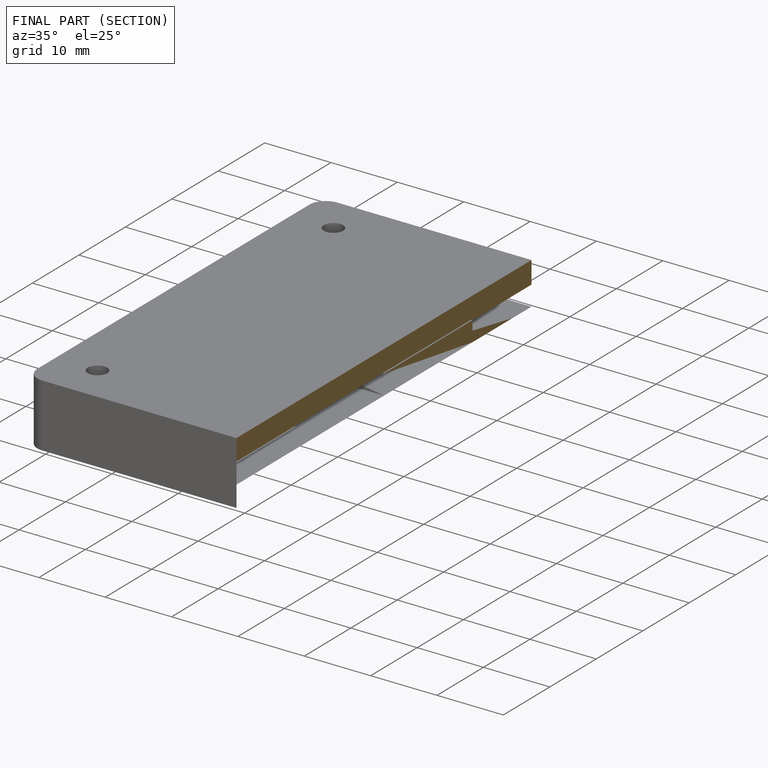
[diagram: finished part — half-section view (interior)]
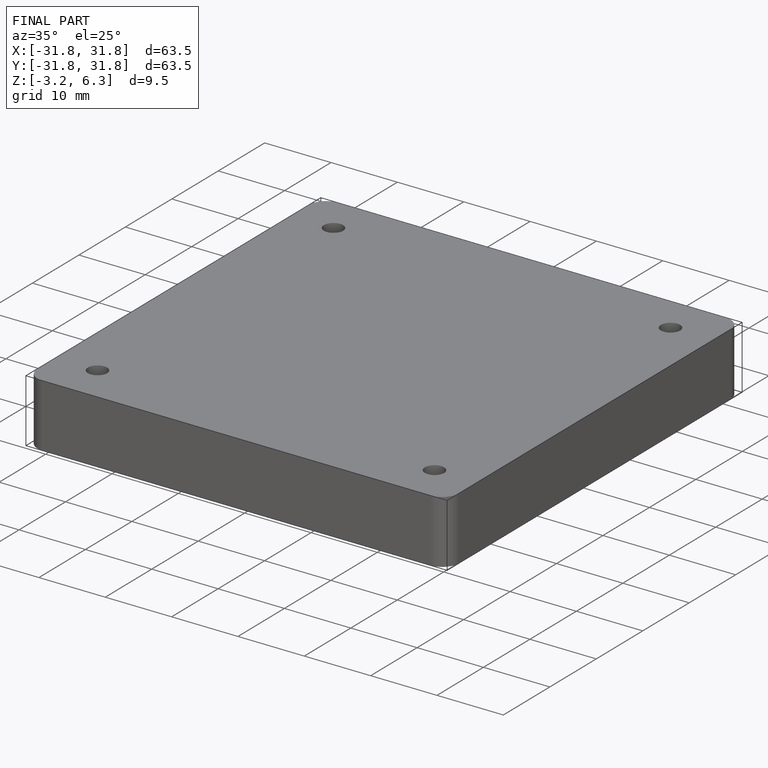
[diagram: finished part — iso view with bounding-box wireframe]
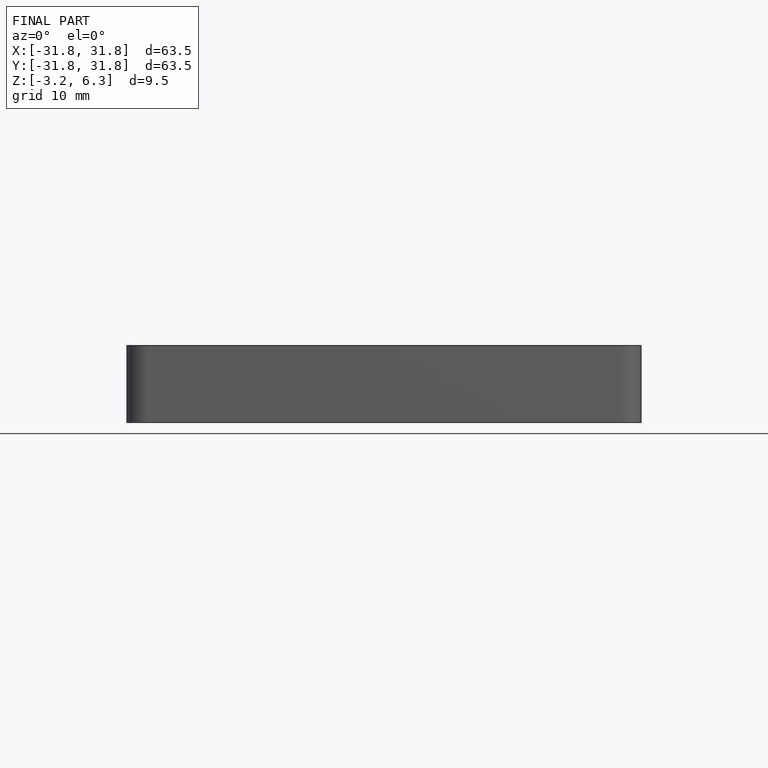
[diagram: finished part — front view with bounding-box wireframe]
